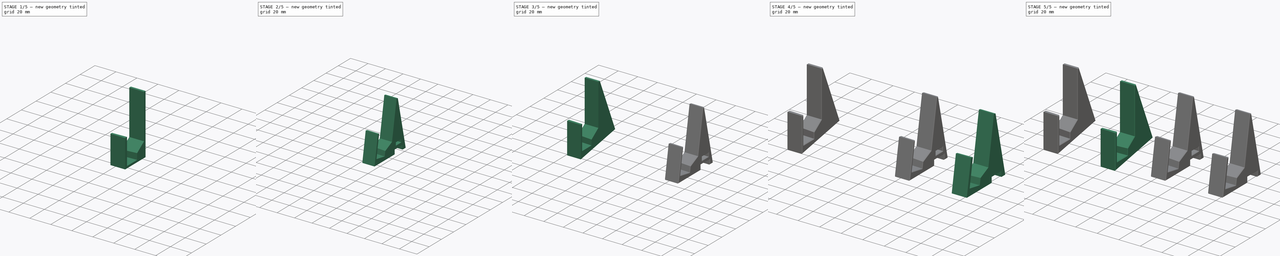
[diagram: build sequence overview — one tinted view per stage of 5, left to right]
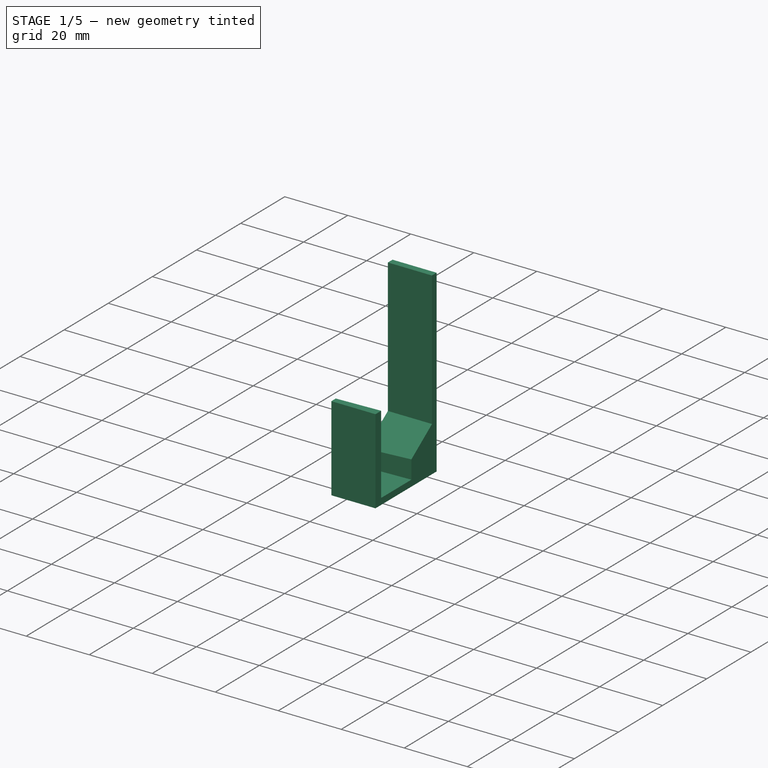
[diagram: stage 1 of 5 — iso view after this stage's code; geometry added in this stage tinted green]
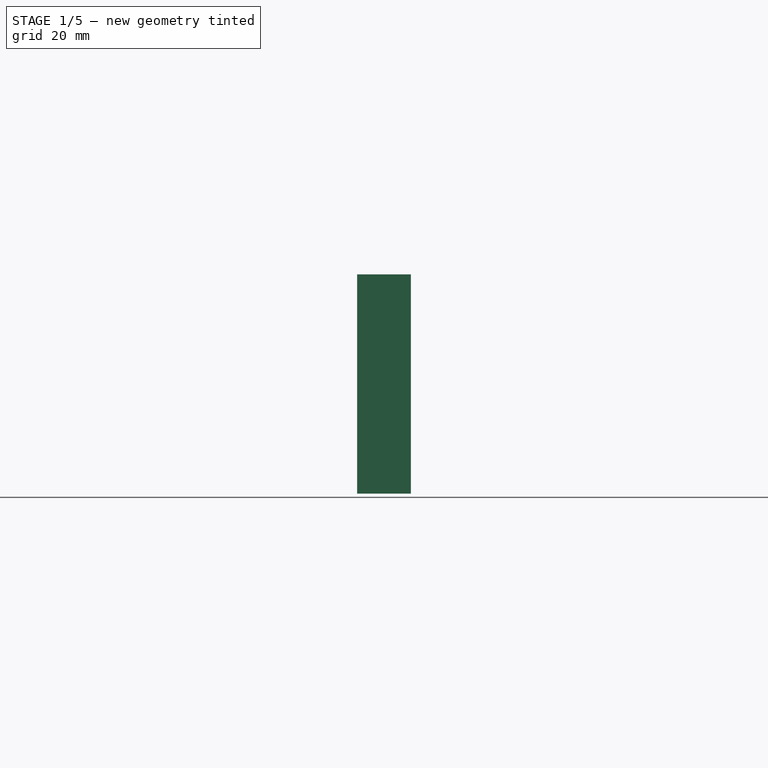
[diagram: stage 1 of 5 — front view after this stage's code; geometry added in this stage tinted green]
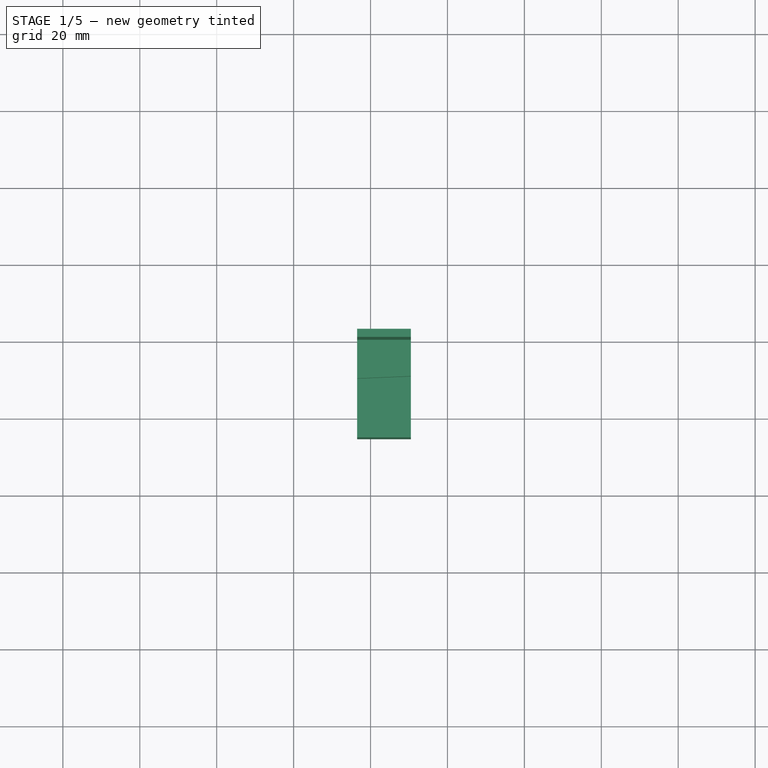
[diagram: stage 1 of 5 — top view after this stage's code; geometry added in this stage tinted green]
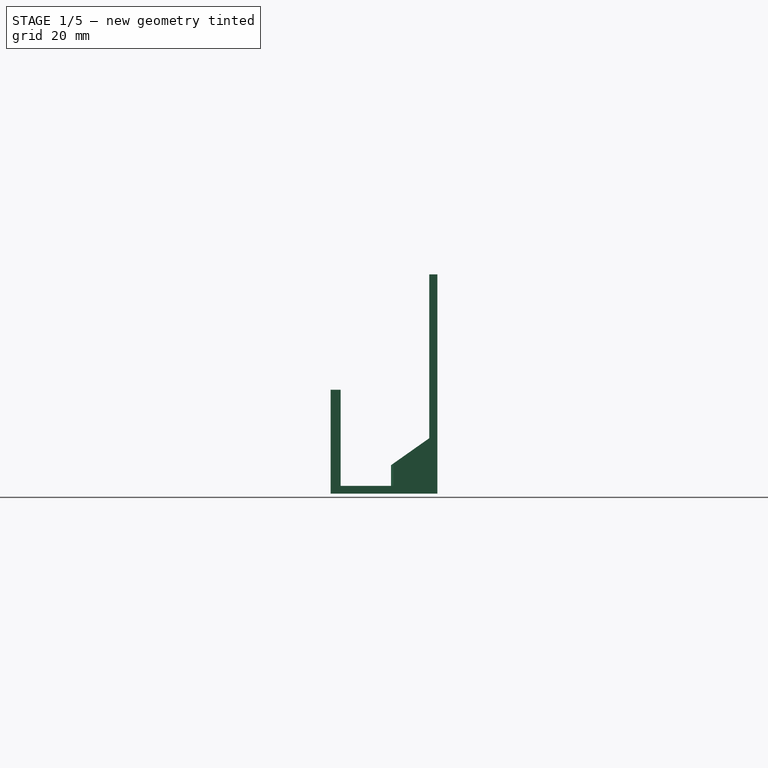
[diagram: stage 1 of 5 — right view after this stage's code; geometry added in this stage tinted green]
FCSTD DOCUMENT  (FreeCAD 1.1R14555 (Git shallow))
Label: GBP Kit
License: Creative Commons Attribution-NonCommercial-ShareAlike
LicenseURL: http://creativecommons.org/licenses/by-nc-sa/4.0/
objects: Sketcher::SketchObject×20, PartDesign::Pocket×18, PartDesign::Pad×11, App::Point×6, PartDesign::Body×5, PartDesign::Chamfer×5, Part::Part2DObjectPython×4, PartDesign::FeatureBase×4, Part::Mirroring×1, PartDesign::ShapeBinder×1, App::Part×1
note: 161 computed .brp shape members not serialized (recipe doc carries the construction recipe); baked Part::Feature solids carry a one-line shape summary decoded from their .brp

FEATURE [Sketcher::SketchObject] Sketch
  ArcFitTolerance = 0
  AttachmentSupport = -> [XY_Plane001]
  ExternalTypes = [0]
  FullyConstrained = true
  MakeInternals = false
  MapMode = 5
  sketch-geometry (15):
    g0: LineSegment [constr] StartX=1.492e-13 StartY=0 StartZ=0 EndX=69 EndY=0 EndZ=0
    g1: LineSegment [constr] StartX=69 StartY=0 StartZ=0 EndX=69 EndY=-22.5 EndZ=0
    g2: LineSegment [constr] StartX=69 StartY=-22.5 StartZ=0 EndX=1.421e-13 EndY=-22.5 EndZ=0
    g3: LineSegment [constr] StartX=1.492e-13 StartY=-22.5 StartZ=0 EndX=1.492e-13 EndY=0 EndZ=0
    g4: LineSegment [constr] StartX=34.5 StartY=0 StartZ=0 EndX=34.5 EndY=-23.5 EndZ=0
    g5: ArcOfCircle [constr] CenterX=34.5 CenterY=572.125 CenterZ=0 NormalX=0 NormalY=0 NormalZ=1 AngleXU=0 Radius=595.625 StartAngle=4.65443 EndAngle=4.77034
    g6: LineSegment StartX=16.5 StartY=2.5 StartZ=0 EndX=16.5 EndY=-23.228 EndZ=0
    g7: LineSegment [constr] StartX=16.5 StartY=-23.228 StartZ=0 EndX=2.5 EndY=-23.228 EndZ=0
    g8: LineSegment [constr] StartX=2.5 StartY=-23.228 StartZ=0 EndX=2.5 EndY=0 EndZ=0
    g9: LineSegment [constr] StartX=1.492e-13 StartY=0 StartZ=0 EndX=2.5 EndY=0 EndZ=0
    g10: LineSegment [constr] StartX=69 StartY=0 StartZ=0 EndX=66.5 EndY=0 EndZ=0
    g11: LineSegment StartX=2.5 StartY=0 StartZ=0 EndX=2.5 EndY=-22.6398 EndZ=0
    g12: ArcOfCircle CenterX=34.5 CenterY=572.125 CenterZ=0 NormalX=0 NormalY=0 NormalZ=1 AngleXU=0 Radius=595.625 StartAngle=4.65864 EndAngle=4.68216
    g13: LineSegment StartX=2.5 StartY=0 StartZ=0 EndX=2.5 EndY=2.5 EndZ=0
    g14: LineSegment StartX=2.5 StartY=2.5 StartZ=0 EndX=16.5 EndY=2.5 EndZ=0
  constraints (42):
    c: Coincident(g0,g1)
    c: Coincident(g1,g2)
    c: Coincident(g2,g3)
    c: Coincident(g3,g0)
    c: Horizontal(g0)
    c: Horizontal(g2)
    c: Vertical(g1)
    c: Vertical(g3)
    c: Coincident(g0,g-1)
    c: DistanceX(g0,g0) = 69
    c: DistanceY(g1,g1) = 22.5
    c: Vertical(g4)
    c: Distance(g4) = 23.5
    c: Symmetric(g0,g0,g4)
    c: Coincident(g5,g2)
    c: Coincident(g5,g1)
    c: PointOnObject(g4,g5)
    c: Coincident(g6,g7)
    c: Coincident(g7,g8)
    c: Horizontal(g7)
    c: Vertical(g6)
    c: Vertical(g8)
    c: PointOnObject(g8,g0)
    c: Coincident(g9,g0)
    c: Coincident(g10,g0)
    c: Equal(g10,g9)
    c: Distance(g9) = 2.5
    c: PointOnObject(g6,g5)
    c: Vertical(g11)
    c: Coincident(g12,g11)
    c: Coincident(g12,g6)
    c: Coincident(g11,g8)
    c: Coincident(g11,g9)
    c: Coincident(g13,g11)
    c: Vertical(g13)
    c: Coincident(g14,g13)
    c: Horizontal(g14)
    c: Coincident(g6,g14)
    c: DistanceY(g13,g13) = 2.5
    c: DistanceX(g14,g14) = 14
    c: Coincident(g5,g12)
    c: PointOnObject(g10,g0)
FEATURE [PartDesign::Pad] Pad
  Direction = (0,0,1)
  Length = 2
  Length2 = 10
  Profile = -> Sketch
  ReferenceAxis = -> Sketch [N_Axis]
  Suppressed = false
  Type = 0
FEATURE [Sketcher::SketchObject] Sketch001
  ArcFitTolerance = 0
  AttachmentSupport = -> [Pad]
  ExternalGeometry = -> [Pad]
  ExternalTypes = [0,0]
  FullyConstrained = true
  MakeInternals = false
  MapMode = 5
  Placement = pos=(0,0,0) rot=(1,0,0;3.14159rad)
  sketch-geometry (8):
    g0: LineSegment StartX=2.5 StartY=-2.5 StartZ=0 EndX=16.5 EndY=-2.5 EndZ=0
    g1: LineSegment StartX=16.5 StartY=-2.5 StartZ=0 EndX=16.5 EndY=-0.4 EndZ=0
    g2: LineSegment StartX=16.5 StartY=-0.4 StartZ=0 EndX=2.5 EndY=-0.4 EndZ=0
    g3: LineSegment StartX=2.5 StartY=-0.4 StartZ=0 EndX=2.5 EndY=-2.5 EndZ=0
    g4: LineSegment StartX=2.5 StartY=22.6398 StartZ=0 EndX=2.5 EndY=25.228 EndZ=0
    g5: LineSegment StartX=2.5 StartY=25.228 StartZ=0 EndX=16.5 EndY=25.228 EndZ=0
    g6: LineSegment StartX=16.5 StartY=25.228 StartZ=0 EndX=16.5 EndY=23.228 EndZ=0
    g7: LineSegment StartX=2.5 StartY=22.6398 StartZ=0 EndX=16.5 EndY=23.228 EndZ=0
  constraints (20):
    c: Coincident(g0,g1)
    c: Coincident(g1,g2)
    c: Coincident(g2,g3)
    c: Coincident(g3,g0)
    c: Horizontal(g2)
    c: Vertical(g1)
    c: Vertical(g3)
    c: DistanceY(g1,g1) = 2.1
    c: Coincident(g5,g4)
    c: Horizontal(g5)
    c: Coincident(g6,g5)
    c: Perpendicular(g5,g4)
    c: Perpendicular(g6,g5)
    c: Distance(g6) = 2
    c: Coincident(g0,g-4)
    c: Coincident(g0,g-4)
    c: Coincident(g4,g-3)
    c: Coincident(g6,g-3)
    c: Coincident(g7,g4)
    c: Coincident(g7,g6)
FEATURE [PartDesign::Pad] Pad001
  BaseFeature = -> Pad
  Direction = (0,0,-1)
  Length = 27
  Length2 = 10
  Profile = -> Sketch001
  ReferenceAxis = -> Sketch001 [N_Axis]
  Refine = true
  Reversed = true
  Suppressed = false
  Type = 0
FEATURE [Sketcher::SketchObject] Sketch002
  ArcFitTolerance = 0
  AttachmentSupport = -> [Pad001]
  ExternalGeometry = -> [Pad001]
  ExternalTypes = [0,0]
  FullyConstrained = true
  MakeInternals = false
  MapMode = 5
  Placement = pos=(0,0,2) rot=(0,0,1;0rad)
  sketch-geometry (6):
    g0: LineSegment StartX=2.5 StartY=-8.93978 StartZ=0 EndX=2.5 EndY=0.4 EndZ=0
    g1: LineSegment StartX=2.5 StartY=0.4 StartZ=0 EndX=16.5 EndY=0.4 EndZ=0
    g2: LineSegment StartX=16.5 StartY=0.4 StartZ=0 EndX=16.5 EndY=-9.52795 EndZ=0
    g3: LineSegment [constr] StartX=2.5 StartY=-22.6398 StartZ=0 EndX=2.5 EndY=-8.93978 EndZ=0
    g4: LineSegment [constr] StartX=16.5 StartY=-23.228 StartZ=0 EndX=16.5 EndY=-9.52795 EndZ=0
    g5: LineSegment StartX=2.5 StartY=-8.93978 StartZ=0 EndX=16.5 EndY=-9.52795 EndZ=0
  constraints (14):
    c: Coincident(g1,g0)
    c: Coincident(g2,g1)
    c: Coincident(g3,g-3)
    c: Coincident(g3,g0)
    c: Vertical(g3)
    c: Coincident(g4,g-3)
    c: Coincident(g4,g2)
    c: Vertical(g4)
    c: Equal(g3,g4)
    c: Distance(g3) = 13.7
    c: Coincident(g-4,g0)
    c: Coincident(g-4,g1)
    c: Coincident(g5,g0)
    c: Coincident(g5,g2)
FEATURE [PartDesign::Pad] Pad002
  BaseFeature = -> Pad001
  Direction = (0,0,1)
  Length = 5.4
  Length2 = 10
  Profile = -> Sketch002
  ReferenceAxis = -> Sketch002 [N_Axis]
  Suppressed = false
  Type = 0
FEATURE [Sketcher::SketchObject] Sketch003
  ArcFitTolerance = 0
  AttachmentSupport = -> [Pad002]
  ExternalGeometry = -> [Pad002]
  ExternalTypes = [0]
  FullyConstrained = true
  MakeInternals = false
  MapMode = 5
  Placement = pos=(16.5,0,0) rot=(0.57735,0.57735,0.57735;2.0944rad)
  sketch-geometry (3):
    g0: LineSegment StartX=-9.52795 StartY=7.4 StartZ=0 EndX=0.4 EndY=14.4 EndZ=0
    g1: LineSegment StartX=0.4 StartY=14.4 StartZ=0 EndX=0.4 EndY=7.4 EndZ=0
    g2: LineSegment StartX=0.4 StartY=7.4 StartZ=0 EndX=-9.52795 EndY=7.4 EndZ=0
  constraints (7):
    c: Coincident(g0,g-3)
    c: PointOnObject(g0,g-4)
    c: Coincident(g1,g0)
    c: Coincident(g1,g-4)
    c: Coincident(g2,g1)
    c: Coincident(g2,g0)
    c: DistanceY(g1,g1) = 7
FEATURE [PartDesign::Pad] Pad003
  BaseFeature = -> Pad002
  Direction = (1,0,0)
  Length = 14
  Length2 = 10
  Profile = -> Sketch003
  ReferenceAxis = -> Sketch003 [N_Axis]
  Reversed = true
  Suppressed = false
  Type = 0
FEATURE [PartDesign::Pocket] Pocket
  BaseFeature = -> Pad003
  Direction = (0,0,1)
  Length = 5
  Length2 = 5
  Profile = -> Pad003 [Face15]
  Refine = true
  Suppressed = false
  Type = 0
FEATURE [PartDesign::Pad] Pad004
  BaseFeature = -> Pocket
  Direction = (0,0,1)
  Length = 30
  Length2 = 10
  Profile = -> Pocket [Face2]
  Refine = true
  Suppressed = false
  Type = 0
FEATURE [PartDesign::Body] Body  label="Prolfile Left"
  AllowCompound = false
  Group = -> [Sketch,Pad,Sketch001,Pad001,Sketch002,Pad002,Sketch003,Pad003,Pocket,Pad004]
  Origin = -> Origin001
  Placement = pos=(-100,0,0) rot=(0,0,1;0rad)
  Tip = -> Pad004
FEATURE [Part::Part2DObjectPython] ShapeString  # Draft 2D object (typed FeaturePython)
  FontFile = <path> Bit Git Repro/16BitVirtualStudiosDesigns/Font/OpenSans-Regular.ttf
  Fuse = false
  Justification = 6
  JustificationReference = 0
  KeepLeftMargin = true
  MakeFace = true
  ObliqueAngle = 0
  Placement = pos=(68.08,-20.75,12.67) rot=(0,0.707107,0.707107;3.14159rad)
  ScaleToSize = false
  Size = 4
  String = GBP
  Tracking = 0
FEATURE [Part::Mirroring] Part__Mirroring  label="Profile Basic"
  Base = (3.8147e-06,-11.364,28.5)
  Normal = (1,0,-1.19209e-07)
  Placement = pos=(-150,0,0) rot=(0,0,1;0rad)
  Source = -> Body
FEATURE [PartDesign::FeatureBase] Clone
  BaseFeature = -> Part__Mirroring
  Placement = pos=(-27,0,0) rot=(0,0,1;0rad)
  Suppressed = false
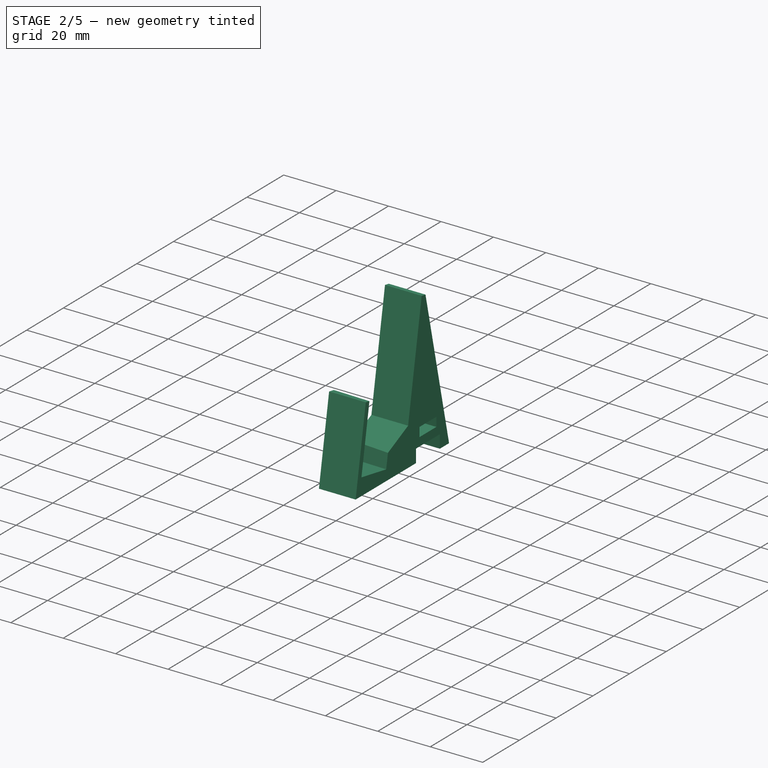
[diagram: stage 2 of 5 — iso view after this stage's code; geometry added in this stage tinted green]
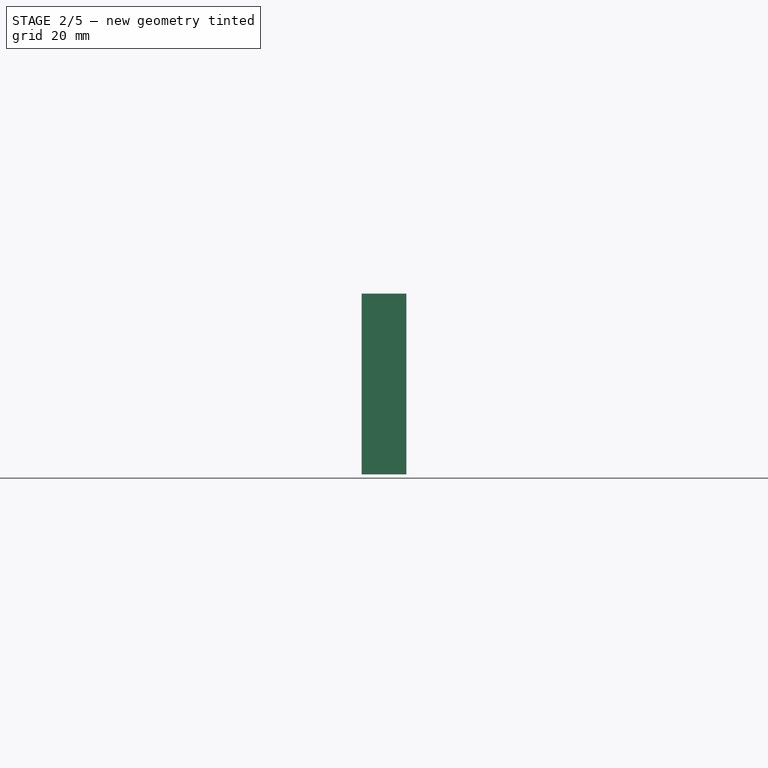
[diagram: stage 2 of 5 — front view after this stage's code; geometry added in this stage tinted green]
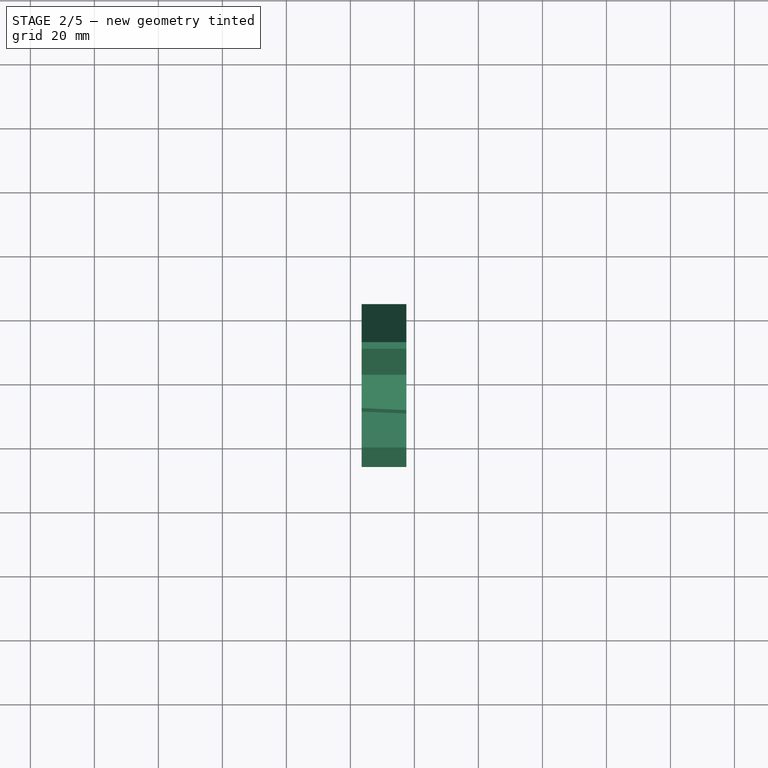
[diagram: stage 2 of 5 — top view after this stage's code; geometry added in this stage tinted green]
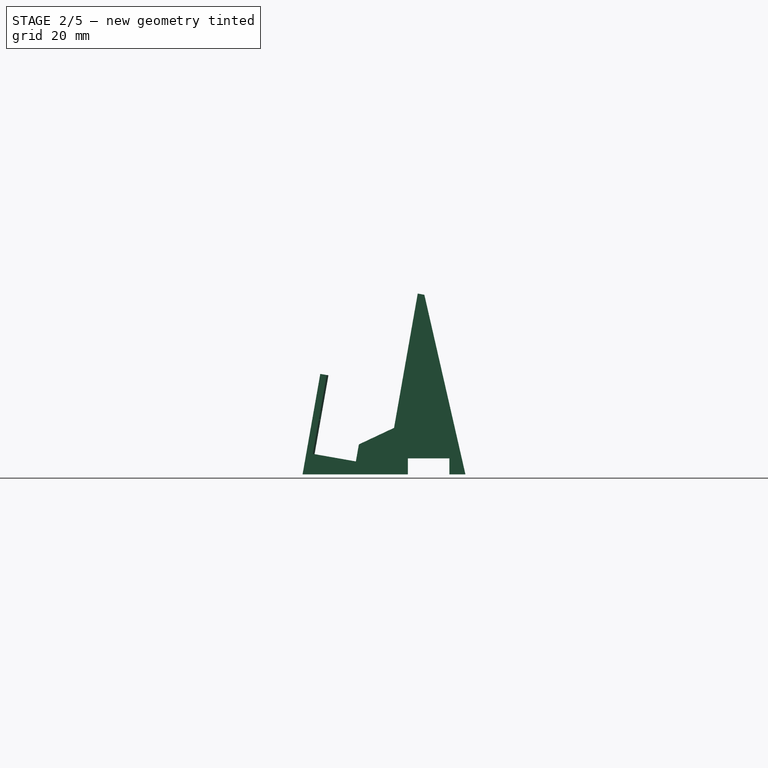
[diagram: stage 2 of 5 — right view after this stage's code; geometry added in this stage tinted green]
FEATURE [PartDesign::FeatureBase] Clone001
  BaseFeature = -> Body
  Placement = pos=(1,0,0) rot=(0,0,1;0rad)
  Suppressed = false
FEATURE [Part::Part2DObjectPython] ShapeString001  # Draft 2D object (typed FeaturePython)
  FontFile = <path> Bit Git Repro/16BitVirtualStudiosDesigns/Font/OpenSans-Regular.ttf
  Fuse = false
  Justification = 6
  JustificationReference = 0
  KeepLeftMargin = true
  MakeFace = true
  ObliqueAngle = 0
  Placement = pos=(15.08,-20.75,12.67) rot=(0,0.707107,0.707107;3.14159rad)
  ScaleToSize = false
  Size = 4
  String = GBP
  Tracking = 0
FEATURE [PartDesign::Pocket] Pocket001
  BaseFeature = -> Clone001
  Direction = (-1e-16,-1,2e-16)
  Length = 0
  Length2 = 5
  Offset = -1.8
  Placement = pos=(1,0,0) rot=(0,0,1;0rad)
  Profile = -> ShapeString001
  ReferenceAxis = -> ShapeString001 [N_Axis]
  Suppressed = false
  Type = 3
  UpToFace = -> Clone001 [Face1]
FEATURE [PartDesign::Pocket] Pocket002
  BaseFeature = -> Clone
  Direction = (-1e-16,-1,2e-16)
  Length = 0
  Length2 = 5
  Offset = -1.8
  Placement = pos=(-27,0,0) rot=(0,0,1;0rad)
  Profile = -> ShapeString
  ReferenceAxis = -> ShapeString [N_Axis]
  Suppressed = false
  Type = 3
  UpToFace = -> Clone [Face1]
FEATURE [Sketcher::SketchObject] Sketch004
  ArcFitTolerance = 0
  AttachmentSupport = -> [Pocket002]
  ExternalGeometry = -> [Pocket002]
  ExternalTypes = [0]
  FullyConstrained = true
  MakeInternals = false
  MapMode = 5
  Placement = pos=(70.5,0,-2.32458e-05) rot=(0.57735,0.57735,0.57735;2.0944rad)
  sketch-geometry (20):
    g0: LineSegment StartX=2.5 StartY=2.388e-13 StartZ=0 EndX=-25.228 EndY=-4.88919 EndZ=0
    g1: LineSegment StartX=-25.228 StartY=2.399e-13 StartZ=0 EndX=-25.228 EndY=-4.88919 EndZ=0
    g2: LineSegment StartX=2.5 StartY=2.388e-13 StartZ=0 EndX=7.16596 EndY=0.822735 EndZ=0
    g3: LineSegment StartX=7.16596 StartY=0.822735 StartZ=0 EndX=6.29772 EndY=5.74677 EndZ=0
    g4: LineSegment StartX=6.29772 StartY=5.74677 StartZ=0 EndX=19.1002 EndY=8.0042 EndZ=0
    g5: LineSegment StartX=19.1002 StartY=8.0042 StartZ=0 EndX=19.9685 EndY=3.08016 EndZ=0
    g6: LineSegment StartX=19.9685 StartY=3.08016 StartZ=0 EndX=24.8925 EndY=3.9484 EndZ=0
    g7: LineSegment [constr] StartX=7.16596 StartY=0.822735 StartZ=0 EndX=19.9685 EndY=3.08016 EndZ=0
    g8: LineSegment [constr] StartX=12.699 StartY=6.87549 StartZ=0 EndX=12.1346 EndY=10.0761 EndZ=0
    g9: LineSegment StartX=6.99673 StartY=12.7242 StartZ=0 EndX=16.057 EndY=14.3217 EndZ=0
    g10: LineSegment StartX=16.057 StartY=14.3217 StartZ=0 EndX=16.6647 EndY=10.8749 EndZ=0
    g11: LineSegment StartX=16.6647 StartY=10.8749 StartZ=0 EndX=7.6045 EndY=9.27733 EndZ=0
    g12: LineSegment StartX=7.6045 StartY=9.27733 StartZ=0 EndX=6.99673 EndY=12.7242 EndZ=0
    g13: LineSegment [constr] StartX=6.99673 StartY=12.7242 StartZ=0 EndX=2.5 EndY=11.9313 EndZ=0
    g14: LineSegment [constr] StartX=2.5 StartY=5.07713 StartZ=0 EndX=6.29772 EndY=5.74677 EndZ=0
    g15: LineSegment StartX=2.5 StartY=57 StartZ=0 EndX=24.8925 EndY=3.9484 EndZ=0
    g16: LineSegment [constr] StartX=19.1002 StartY=8.0042 StartZ=0 EndX=22.8979 EndY=8.67384 EndZ=0
    g17: LineSegment [constr] StartX=16.057 StartY=14.3217 StartZ=0 EndX=20.2053 EndY=15.0532 EndZ=0
    g18: LineSegment StartX=2.5 StartY=57 StartZ=0 EndX=2.5 EndY=2.416e-13 EndZ=0
    g19: LineSegment StartX=2.5 StartY=2.388e-13 StartZ=0 EndX=-25.228 EndY=2.399e-13 EndZ=0
  constraints (54):
    c: Coincident(g0,g-4)
    c: Coincident(g1,g-3)
    c: Coincident(g1,g0)
    c: Perpendicular(g-3,g1)
    c: Coincident(g2,g0)
    c: Coincident(g3,g2)
    c: Coincident(g4,g3)
    c: Coincident(g5,g4)
    c: Coincident(g6,g5)
    c: Parallel(g2,g0)
    c: Parallel(g2,g6)
    c: Perpendicular(g3,g2)
    c: Perpendicular(g6,g5)
    c: Perpendicular(g4,g5)
    c: Angle(g-3,g0) = 0.174533
    c: Coincident(g7,g2)
    c: Coincident(g7,g5)
    c: Parallel(g7,g2)
    c: Distance(g7) = 13
    c: Distance(g5) = 5
    c: Coincident(g11,g10)
    c: Coincident(g12,g11)
    c: Coincident(g12,g9)
    c: Symmetric(g11,g10,g8)
    c: Symmetric(g3,g4,g8)
    c: Perpendicular(g8,g4)
    c: Perpendicular(g11,g8)
    c: Perpendicular(g10,g11)
    c: Perpendicular(g9,g10)
    c: Perpendicular(g12,g11)
    c: Coincident(g13,g9)
    c: PointOnObject(g13,g-4)
    c: PointOnObject(g14,g-4)
    c: Coincident(g14,g3)
    c: Coincident(g15,g-4)
    c: Coincident(g15,g6)
    c: Coincident(g9,g10)
    c: Coincident(g16,g4)
    c: PointOnObject(g16,g15)
    c: Parallel(g14,g4)
    c: Parallel(g13,g9)
    c: Parallel(g16,g4)
    c: Distance(g8) = 3.25
    c: Distance(g10) = 3.5
    c: Distance(g9) = 9.2
    c: Equal(g14,g16)
    c: Coincident(g17,g9)
    c: PointOnObject(g17,g15)
    c: Parallel(g9,g17)
    c: Distance(g6) = 5
    c: Coincident(g18,g15)
    c: Coincident(g18,g0)
    c: Coincident(g19,g0)
    c: Coincident(g19,g1)
FEATURE [PartDesign::Pad] Pad005
  BaseFeature = -> Pocket002
  Direction = (1,0,-2.38419e-07)
  Length = 14
  Length2 = 10
  Placement = pos=(-27,0,0) rot=(0,0,1;0rad)
  Profile = -> Sketch004
  ReferenceAxis = -> Sketch004 [N_Axis]
  Refine = true
  Reversed = true
  Suppressed = false
  Type = 0
FEATURE [Sketcher::SketchObject] Sketch015  label="GB Icon"
  ArcFitTolerance = 0
  ExternalTypes = [0]
  FullyConstrained = false
  MakeInternals = false
  Placement = pos=(6.55,12.23,-0.43) rot=(0,1,0;3.14159rad)
  sketch-geometry (16):
    g0: BSplineCurve PolesCount=2 KnotsCount=2 Degree=1 IsPeriodic=0
    g1: BSplineCurve PolesCount=4 KnotsCount=2 Degree=3 IsPeriodic=0
    g2: BSplineCurve PolesCount=4 KnotsCount=2 Degree=3 IsPeriodic=0
    g3: BSplineCurve PolesCount=4 KnotsCount=2 Degree=3 IsPeriodic=0
    g4: BSplineCurve PolesCount=2 KnotsCount=2 Degree=1 IsPeriodic=0
    g5: BSplineCurve PolesCount=4 KnotsCount=2 Degree=3 IsPeriodic=0
    g6: BSplineCurve PolesCount=2 KnotsCount=2 Degree=1 IsPeriodic=0
    g7: BSplineCurve PolesCount=4 KnotsCount=2 Degree=3 IsPeriodic=0
    g8: BSplineCurve PolesCount=2 KnotsCount=2 Degree=1 IsPeriodic=0
    g9: BSplineCurve PolesCount=4 KnotsCount=2 Degree=3 IsPeriodic=0
    g10: BSplineCurve PolesCount=4 KnotsCount=2 Degree=3 IsPeriodic=0
    g11: BSplineCurve PolesCount=4 KnotsCount=2 Degree=3 IsPeriodic=0
    g12: BSplineCurve PolesCount=2 KnotsCount=2 Degree=1 IsPeriodic=0
    g13: BSplineCurve PolesCount=4 KnotsCount=2 Degree=3 IsPeriodic=0
    g14: BSplineCurve PolesCount=2 KnotsCount=2 Degree=1 IsPeriodic=0
    g15: BSplineCurve PolesCount=4 KnotsCount=2 Degree=3 IsPeriodic=0
  constraints (16):
    c: Coincident(g0,g1)
    c: Coincident(g1,g2)
    c: Coincident(g2,g3)
    c: Coincident(g3,g4)
    c: Coincident(g4,g5)
    c: Coincident(g5,g6)
    c: Coincident(g6,g7)
    c: Coincident(g7,g0)
    c: Coincident(g8,g9)
    c: Coincident(g9,g10)
    c: Coincident(g10,g11)
    c: Coincident(g11,g12)
    c: Coincident(g12,g13)
    c: Coincident(g13,g14)
    c: Coincident(g14,g15)
    c: Coincident(g15,g8)
FEATURE [PartDesign::ShapeBinder] ShapeBinder
  Placement = pos=(-27,0,0) rot=(0,0,1;0rad)
  Support = -> [Pad005]
  Suppressed = false
  TraceSupport = false
FEATURE [Sketcher::SketchObject] Sketch016
  ArcFitTolerance = 0
  AttachmentSupport = -> [Pocket001]
  ExternalGeometry = -> [ShapeBinder,Pocket001]
  ExternalTypes = [0]
  FullyConstrained = true
  MakeInternals = false
  MapMode = 5
  Placement = pos=(3.5,0,0) rot=(0.57735,-0.57735,-0.57735;2.0944rad)
  sketch-geometry (14):
    g0: LineSegment StartX=-7.16596 StartY=0.822715 StartZ=0 EndX=25.228 EndY=-4.88921 EndZ=0
    g1: LineSegment StartX=25.228 StartY=-4.88921 StartZ=0 EndX=25.228 EndY=1 EndZ=0
    g2: LineSegment StartX=25.228 StartY=1 StartZ=0 EndX=-1.75 EndY=1 EndZ=0
    g3: LineSegment StartX=-7.16596 StartY=0.822715 StartZ=0 EndX=-6.29772 EndY=5.74675 EndZ=0
    g4: LineSegment StartX=-6.29772 StartY=5.74675 StartZ=0 EndX=-19.1002 EndY=8.00418 EndZ=0
    g5: LineSegment StartX=-19.1002 StartY=8.00418 StartZ=0 EndX=-19.9685 EndY=3.08014 EndZ=0
    g6: LineSegment StartX=-19.9685 StartY=3.08014 StartZ=0 EndX=-24.8925 EndY=3.94838 EndZ=0
    g7: LineSegment StartX=-24.8925 StartY=3.94838 StartZ=0 EndX=-2.5 EndY=57 EndZ=0
    g8: LineSegment StartX=-16.057 StartY=14.3217 StartZ=0 EndX=-6.99673 EndY=12.7241 EndZ=0
    g9: LineSegment StartX=-6.99673 StartY=12.7241 StartZ=0 EndX=-7.6045 EndY=9.27731 EndZ=0
    g10: LineSegment StartX=-7.6045 StartY=9.27731 StartZ=0 EndX=-16.6647 EndY=10.8749 EndZ=0
    g11: LineSegment StartX=-16.6647 StartY=10.8749 StartZ=0 EndX=-16.057 EndY=14.3217 EndZ=0
    g12: LineSegment StartX=-2.5 StartY=57 StartZ=0 EndX=-1.75 EndY=57 EndZ=0
    g13: LineSegment StartX=-1.75 StartY=57 StartZ=0 EndX=-1.75 EndY=1 EndZ=0
  constraints (31):
    c: Coincident(g1,g0)
    c: Coincident(g3,g0)
    c: Coincident(g3,g-5)
    c: Coincident(g4,g3)
    c: Coincident(g4,g-5)
    c: Coincident(g5,g4)
    c: Coincident(g5,g-4)
    c: Coincident(g6,g5)
    c: Coincident(g7,g6)
    c: Coincident(g8,g-6)
    c: Coincident(g8,g-7)
    c: Coincident(g9,g8)
    c: Coincident(g9,g-7)
    c: Coincident(g10,g9)
    c: Coincident(g10,g-6)
    c: Coincident(g11,g10)
    c: Coincident(g11,g8)
    c: Coincident(g-3,g0)
    c: Coincident(g-3,g0)
    c: Coincident(g1,g2)
    c: Parallel(g-8,g1)
    c: DistanceY(g-8,g1) = 1
    c: Coincident(g-4,g6)
    c: Coincident(g7,g-9)
    c: Coincident(g12,g7)
    c: PointOnObject(g12,g-9)
    c: Coincident(g13,g12)
    c: Coincident(g13,g2)
    c: Vertical(g13)
    c: Perpendicular(g2,g13)
    c: Distance(g12) = 0.75
FEATURE [PartDesign::Pad] Pad012
  BaseFeature = -> Pocket001
  Direction = (-1,0,0)
  Length = 14
  Length2 = 10
  Placement = pos=(1,0,0) rot=(0,0,1;0rad)
  Profile = -> Sketch016
  ReferenceAxis = -> Sketch016 [N_Axis]
  Refine = true
  Reversed = true
  Suppressed = false
  Type = 0
FEATURE [PartDesign::Pocket] Pocket009
  BaseFeature = -> Pad012
  Direction = (0,-0.173648,0.984808)
  Length = 0
  Length2 = 5
  Offset = 0.5
  Placement = pos=(1,0,0) rot=(0,0,1;0rad)
  Profile = -> ShapeString003
  ReferenceAxis = -> ShapeString003 [N_Axis]
  Suppressed = false
  Type = 3
  UpToFace = -> Pad012 [Face100]
FEATURE [PartDesign::FeatureBase] Clone003
  BaseFeature = -> Pocket009
  Placement = pos=(101,0,0) rot=(-1,0,0;0.174533rad)
  Suppressed = false
FEATURE [Sketcher::SketchObject] Sketch009
  ArcFitTolerance = 0
  AttachmentSupport = -> [Clone003]
  ExternalGeometry = -> [Clone003]
  ExternalTypes = [0]
  FullyConstrained = true
  MakeInternals = false
  MapMode = 5
  Placement = pos=(103.5,0,0) rot=(0.540716,-0.6444,-0.540716;1.99673rad)
  sketch-geometry (4):
    g0: LineSegment StartX=-16.057 StartY=14.3217 StartZ=0 EndX=-6.99673 EndY=12.7241 EndZ=0
    g1: LineSegment StartX=-7.6045 StartY=9.27731 StartZ=0 EndX=-16.6647 EndY=10.8749 EndZ=0
    g2: LineSegment StartX=-16.6647 StartY=10.8749 StartZ=0 EndX=-16.057 EndY=14.3217 EndZ=0
    g3: LineSegment StartX=-6.99673 StartY=12.7241 StartZ=0 EndX=-7.6045 EndY=9.27731 EndZ=0
  constraints (8):
    c: Coincident(g0,g-3)
    c: Coincident(g0,g-4)
    c: Coincident(g1,g-4)
    c: Coincident(g1,g-3)
    c: Coincident(g2,g1)
    c: Coincident(g2,g0)
    c: Coincident(g3,g0)
    c: Coincident(g3,g1)
FEATURE [PartDesign::Pad] Pad010
  BaseFeature = -> Clone003
  Direction = (-1,0,2e-16)
  Length = 2
  Length2 = 10
  Placement = pos=(101,0,0) rot=(-1,0,0;0.174533rad)
  Profile = -> Sketch009
  ReferenceAxis = -> Sketch009 [N_Axis]
  Refine = true
  Reversed = true
  Suppressed = false
  Type = 0
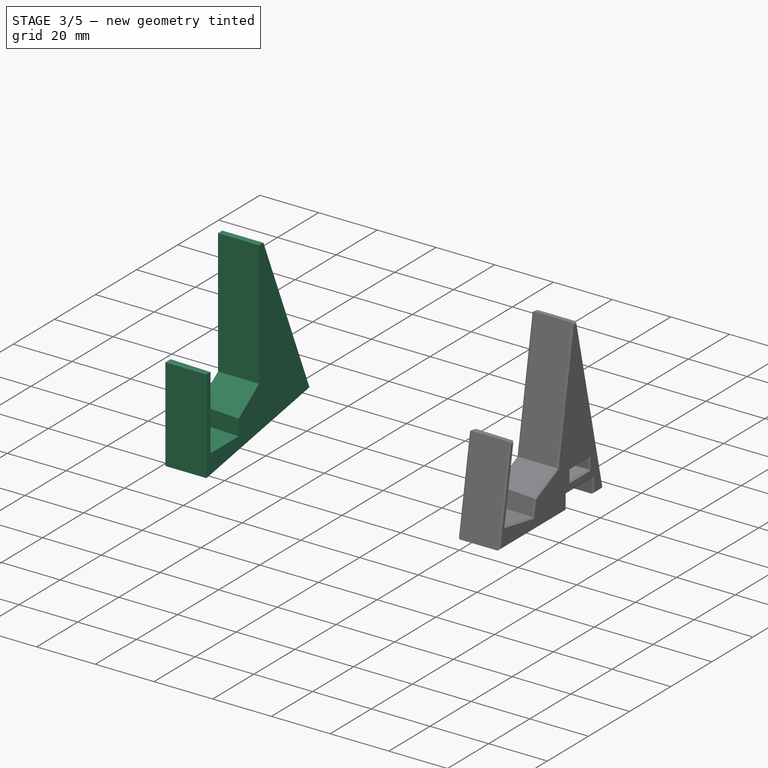
[diagram: stage 3 of 5 — iso view after this stage's code; geometry added in this stage tinted green]
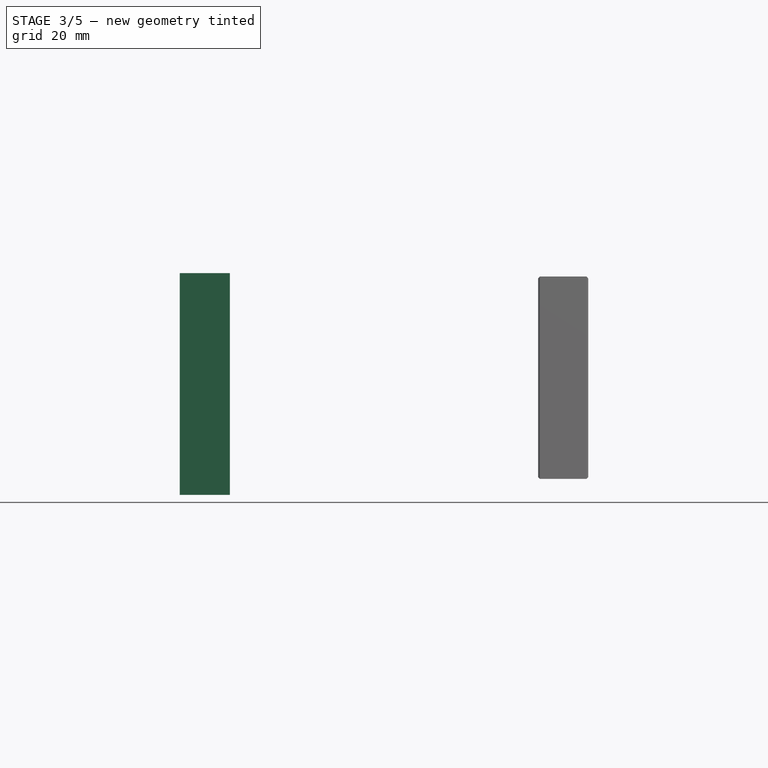
[diagram: stage 3 of 5 — front view after this stage's code; geometry added in this stage tinted green]
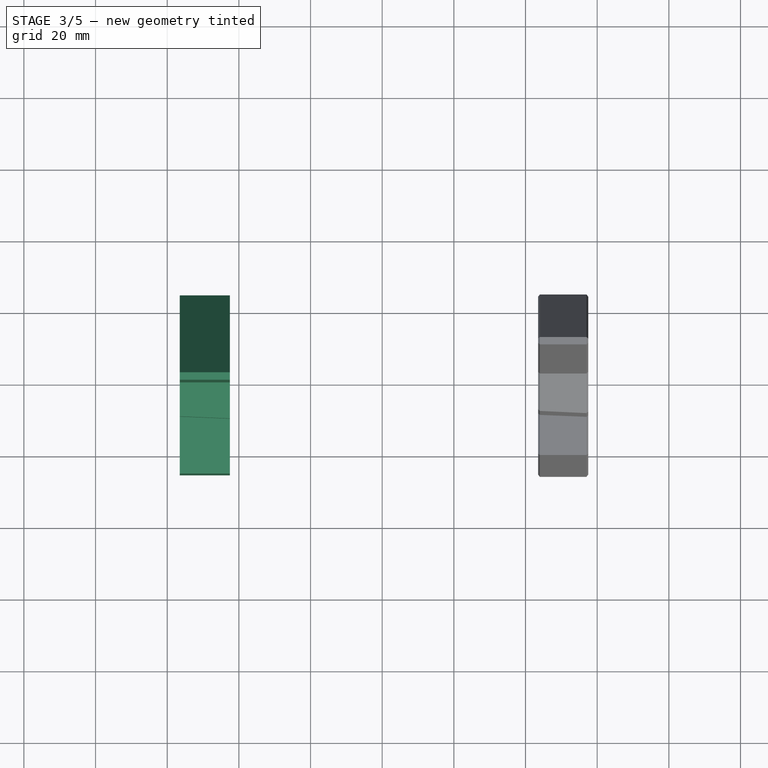
[diagram: stage 3 of 5 — top view after this stage's code; geometry added in this stage tinted green]
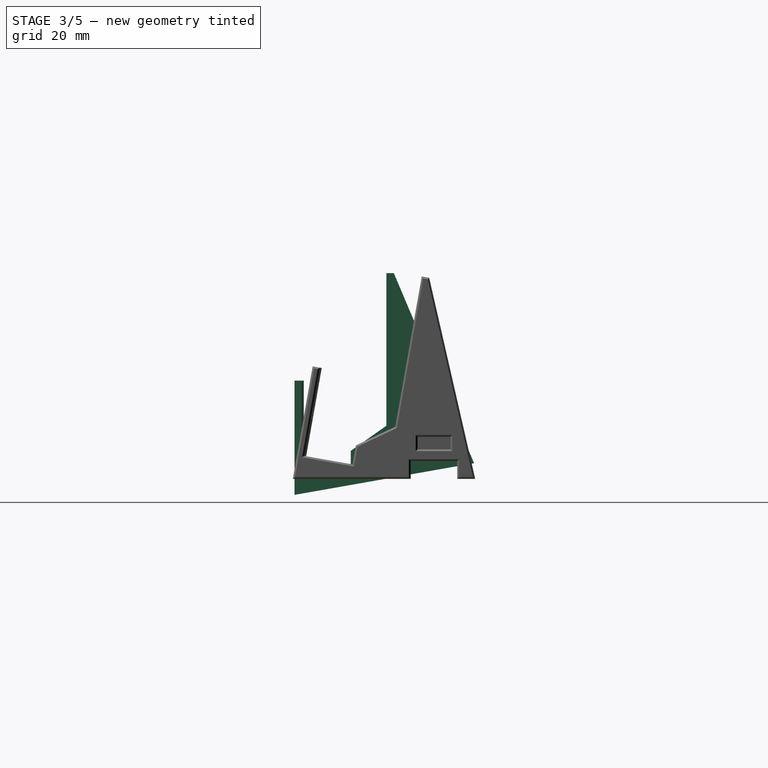
[diagram: stage 3 of 5 — right view after this stage's code; geometry added in this stage tinted green]
FEATURE [Sketcher::SketchObject] Sketch010
  ArcFitTolerance = 0
  AttachmentSupport = -> [Pad010]
  ExternalGeometry = -> [Pad010]
  ExternalTypes = [0]
  FullyConstrained = true
  MakeInternals = false
  MapMode = 5
  Placement = pos=(101,2.26e-14,4.56586) rot=(1,0,0;3.14159rad)
  sketch-geometry (1):
    g0: Circle CenterX=9.5 CenterY=-13.7 CenterZ=0 NormalX=0 NormalY=0 NormalZ=1 AngleXU=0 Radius=2.6
  constraints (2):
    c: Symmetric(g-3,g-4,g0)
    c: Diameter(g0) = 5.2
FEATURE [PartDesign::Pocket] Pocket005
  BaseFeature = -> Pad010
  Direction = (0,4.9e-15,1)
  Length = 11
  Length2 = 5
  Placement = pos=(101,0,0) rot=(-1,0,0;0.174533rad)
  Profile = -> Sketch010
  ReferenceAxis = -> Sketch010 [N_Axis]
  Suppressed = false
  Type = 0
FEATURE [Sketcher::SketchObject] Sketch011
  ArcFitTolerance = 0
  AttachmentSupport = -> [Pocket005]
  ExternalGeometry = -> [Pocket005]
  ExternalTypes = [0]
  FullyConstrained = true
  MakeInternals = false
  MapMode = 5
  Placement = pos=(101,2.26e-14,4.56586) rot=(1,0,0;3.14159rad)
  sketch-geometry (1):
    g0: Circle CenterX=9.5 CenterY=-13.7 CenterZ=0 NormalX=0 NormalY=0 NormalZ=1 AngleXU=0 Radius=2.6
  constraints (2):
    c: Coincident(g0,g-3)
    c: Diameter(g0) = 5.2
FEATURE [PartDesign::Pocket] Pocket006
  BaseFeature = -> Pocket005
  Direction = (0,4.9e-15,1)
  Length = 4
  Length2 = 5
  Placement = pos=(101,0,0) rot=(-1,0,0;0.174533rad)
  Profile = -> Sketch011
  ReferenceAxis = -> Sketch011 [N_Axis]
  Suppressed = false
  Type = 0
FEATURE [Sketcher::SketchObject] Sketch017
  ArcFitTolerance = 0
  AttachmentSupport = -> [Pocket009]
  ExternalGeometry = -> [Pocket009]
  ExternalTypes = [0]
  FullyConstrained = true
  MakeInternals = false
  MapMode = 5
  Placement = pos=(3.5,0,0) rot=(0.57735,-0.57735,-0.57735;2.0944rad)
  sketch-geometry (8):
    g0: LineSegment StartX=-6.29772 StartY=5.74675 StartZ=0 EndX=-19.1002 EndY=8.00418 EndZ=0
    g1: LineSegment StartX=-19.1002 StartY=8.00418 StartZ=0 EndX=-19.9685 EndY=3.08014 EndZ=0
    g2: LineSegment StartX=-19.9685 StartY=3.08014 StartZ=0 EndX=-7.16596 EndY=0.822715 EndZ=0
    g3: LineSegment StartX=-7.16596 StartY=0.822715 StartZ=0 EndX=-6.29772 EndY=5.74675 EndZ=0
    g4: LineSegment StartX=-7.6045 StartY=9.27731 StartZ=0 EndX=-16.6647 EndY=10.8749 EndZ=0
    g5: LineSegment StartX=-16.6647 StartY=10.8749 StartZ=0 EndX=-16.057 EndY=14.3217 EndZ=0
    g6: LineSegment StartX=-16.057 StartY=14.3217 StartZ=0 EndX=-6.99673 EndY=12.7241 EndZ=0
    g7: LineSegment StartX=-6.99673 StartY=12.7241 StartZ=0 EndX=-7.6045 EndY=9.27731 EndZ=0
  constraints (16):
    c: Coincident(g0,g-5)
    c: Coincident(g0,g-6)
    c: Coincident(g1,g0)
    c: Coincident(g1,g-6)
    c: Coincident(g2,g1)
    c: Coincident(g2,g-5)
    c: Coincident(g3,g2)
    c: Coincident(g3,g0)
    c: Coincident(g4,g-4)
    c: Coincident(g4,g-3)
    c: Coincident(g5,g4)
    c: Coincident(g5,g-3)
    c: Coincident(g6,g5)
    c: Coincident(g6,g-4)
    c: Coincident(g7,g6)
    c: Coincident(g7,g4)
FEATURE [PartDesign::Pad] Pad013
  BaseFeature = -> Pocket009
  Direction = (-1,0,0)
  Length = 14
  Length2 = 10
  Placement = pos=(1,0,0) rot=(0,0,1;0rad)
  Profile = -> Sketch017
  ReferenceAxis = -> Sketch017 [N_Axis]
  Refine = true
  Reversed = true
  Suppressed = false
  Type = 0
FEATURE [PartDesign::Pocket] Pocket012
  BaseFeature = -> Pad013
  Direction = (0,0.173648,-0.984808)
  Length = 0
  Length2 = 5
  Offset = 0.5
  Placement = pos=(1,0,0) rot=(0,0,1;0rad)
  Profile = -> Sketch019
  ReferenceAxis = -> Sketch019 [N_Axis]
  Reversed = true
  Suppressed = false
  Type = 3
  UpToFace = -> Pad013 [Face93]
FEATURE [PartDesign::Pocket] Pocket016
  BaseFeature = -> Pocket006
  Direction = (-1e-16,0,1)
  Length = 0
  Length2 = 5
  Offset = 0.5
  Placement = pos=(101,0,0) rot=(-1,0,0;0.174533rad)
  Profile = -> Sketch020
  ReferenceAxis = -> Sketch020 [N_Axis]
  Suppressed = false
  Type = 3
  UpToFace = -> Pocket006 [Face11]
FEATURE [PartDesign::Pocket] Pocket017
  BaseFeature = -> Pocket016
  Direction = (0,5.1e-15,1)
  Length = 1
  Length2 = 5
  Placement = pos=(101,0,0) rot=(-1,0,0;0.174533rad)
  Profile = -> Pocket016 [Face130]
  Suppressed = false
  Type = 0
FEATURE [PartDesign::Body] Body002  label="Stand Left"
  AllowCompound = false
  BaseFeature = -> Body
  Group = -> [Clone001,ShapeString001,Pocket001,ShapeString003,ShapeBinder,Sketch016,Pad012,Pocket009,Sketch017,Pad013,Sketch019,Pocket012,Pocket013,Chamfer]
  Origin = -> Origin003
  Placement = pos=(0,0,0) rot=(-1,0,0;0.174533rad)
  Tip = -> Chamfer
FEATURE [PartDesign::Chamfer] Chamfer005
  Angle = 45
  Base = -> Pocket017 [Face2,Face4]
  BaseFeature = -> Pocket017
  ChamferType = 0
  FlipDirection = false
  Placement = pos=(101,0,0) rot=(-1,0,0;0.174533rad)
  Size = 0.5
  Size2 = 1
  SupportTransform = false
  Suppressed = false
  UseAllEdges = false
FEATURE [PartDesign::Body] Body004  label="Kit Left"
  AllowCompound = false
  BaseFeature = -> Pocket009
  Group = -> [Clone003,Sketch009,Pad010,Sketch010,Pocket005,Sketch011,Pocket006,Sketch020,Pocket016,Pocket017,Chamfer005]
  Origin = -> Origin005
  Tip = -> Chamfer005
FEATURE [App::Part] Part  label="GBP"
  Group = -> [Body,Part__Mirroring,Body001,Body002,Body003,Body004]
  Origin = -> Origin
FEATURE [App::Point] Origin006  label="Origin"
  Role = Origin
FEATURE [App::Point] Origin007  label="Origin"
  Role = Origin
FEATURE [App::Point] Origin008  label="Origin"
  Role = Origin
FEATURE [App::Point] Origin009  label="Origin"
  Role = Origin
FEATURE [App::Point] Origin010  label="Origin"
  Role = Origin
FEATURE [App::Point] Origin011  label="Origin"
  Role = Origin
note: 4 file-system paths scrubbed to <path> (originals preserved in the JSON sidecar)
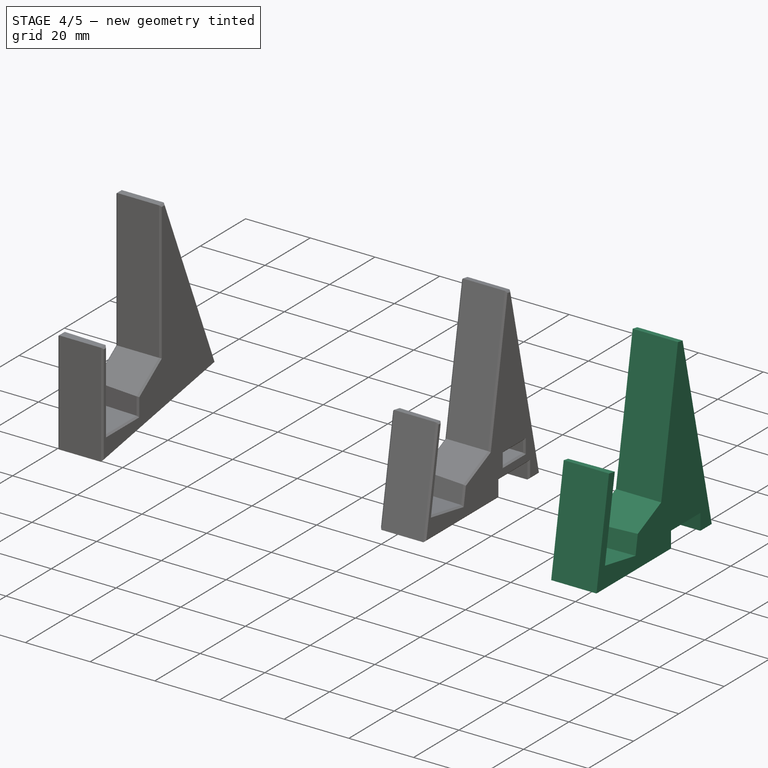
[diagram: stage 4 of 5 — iso view after this stage's code; geometry added in this stage tinted green]
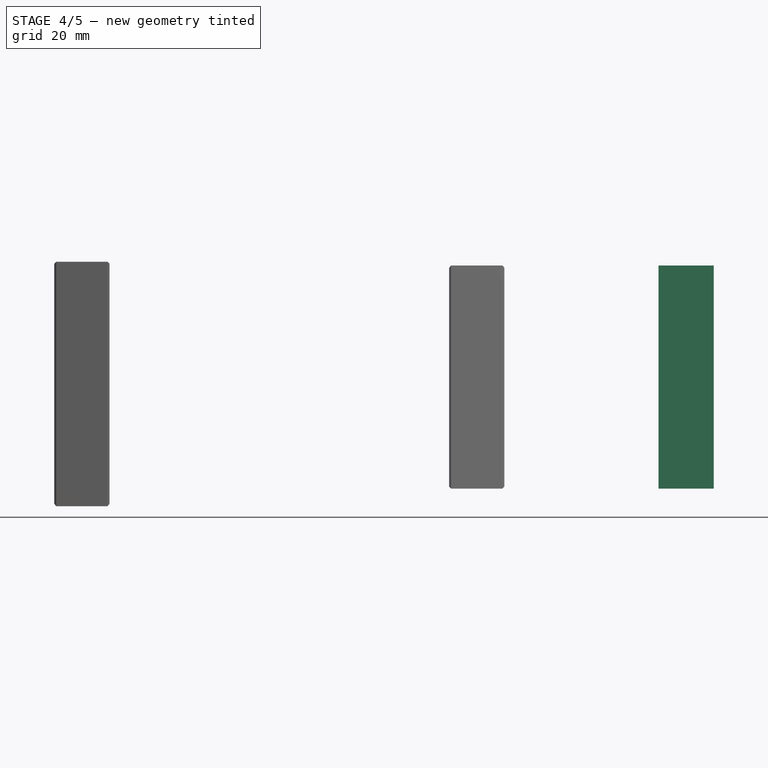
[diagram: stage 4 of 5 — front view after this stage's code; geometry added in this stage tinted green]
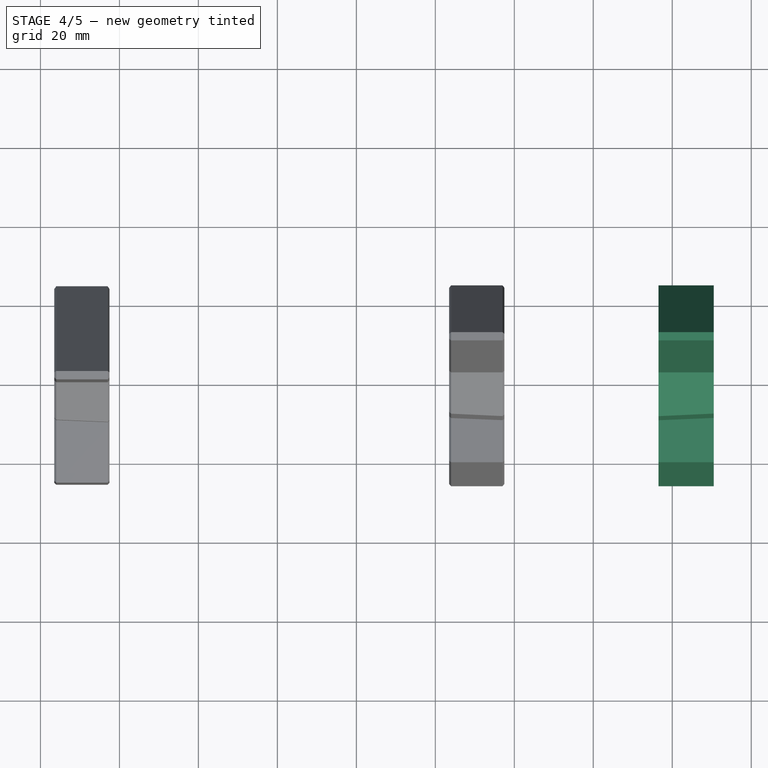
[diagram: stage 4 of 5 — top view after this stage's code; geometry added in this stage tinted green]
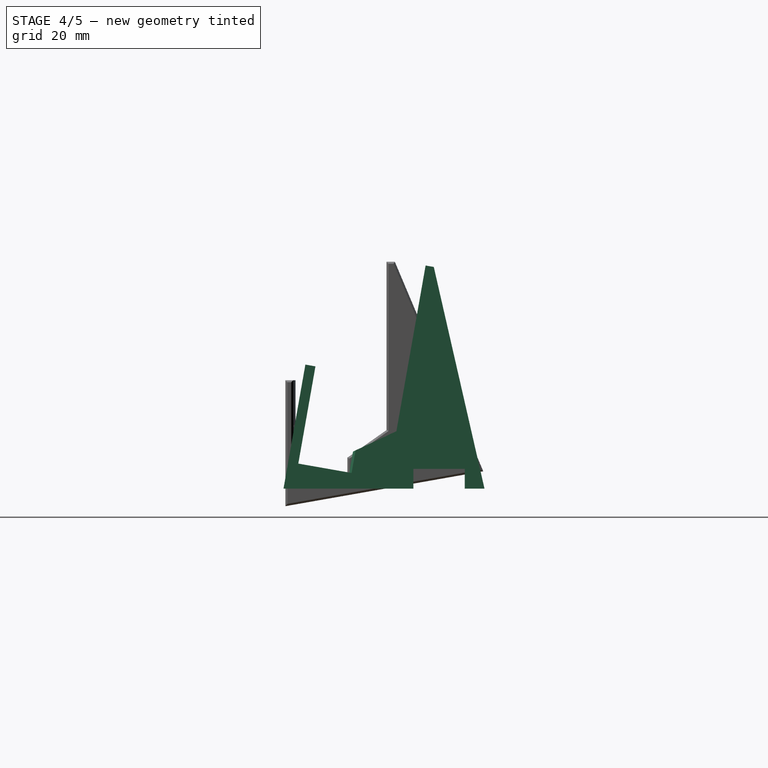
[diagram: stage 4 of 5 — right view after this stage's code; geometry added in this stage tinted green]
FEATURE [Part::Part2DObjectPython] ShapeString002  # Draft 2D object (typed FeaturePython)
  FontFile = <path> Bit Git Repro/16BitVirtualStudiosDesigns/Font/OpenSans-Regular.ttf
  Fuse = false
  Justification = 6
  JustificationReference = 0
  KeepLeftMargin = true
  MakeFace = true
  ObliqueAngle = 0
  Placement = pos=(59.6,-14.24,-5.02) rot=(1,0,0;3.31613rad)
  ScaleToSize = false
  Size = 10
  String = R
  Tracking = 0
FEATURE [Part::Part2DObjectPython] ShapeString003  # Draft 2D object (typed FeaturePython)
  FontFile = <path> Bit Git Repro/16BitVirtualStudiosDesigns/Font/OpenSans-Regular.ttf
  Fuse = false
  Justification = 6
  JustificationReference = 0
  KeepLeftMargin = true
  MakeFace = true
  ObliqueAngle = 0
  Placement = pos=(7.01,-14.23,-5.03) rot=(1,0,0;3.31613rad)
  ScaleToSize = false
  Size = 10
  String = L
  Tracking = 0
FEATURE [PartDesign::Pocket] Pocket004
  BaseFeature = -> Pad005
  Direction = (0,-0.173648,0.984808)
  Length = 0
  Length2 = 5
  Offset = 0.5
  Placement = pos=(-27,0,0) rot=(0,0,1;0rad)
  Profile = -> ShapeString002
  ReferenceAxis = -> ShapeString002 [N_Axis]
  Suppressed = false
  Type = 3
  UpToFace = -> Pad005 [Face101]
FEATURE [PartDesign::FeatureBase] Clone002
  BaseFeature = -> Pocket004
  Placement = pos=(73,0,0) rot=(-1,0,0;0.174533rad)
  Suppressed = false
FEATURE [Sketcher::SketchObject] Sketch012
  ArcFitTolerance = 0
  AttachmentSupport = -> [Clone002]
  ExternalGeometry = -> [Clone002]
  ExternalTypes = [0]
  FullyConstrained = true
  MakeInternals = false
  MapMode = 5
  Placement = pos=(170.5,-4.03659e-06,-2.28927e-05) rot=(0.540716,0.644401,0.540716;1.99673rad)
  sketch-geometry (4):
    g0: LineSegment StartX=6.99673 StartY=12.7242 StartZ=0 EndX=16.057 EndY=14.3217 EndZ=0
    g1: LineSegment StartX=16.057 StartY=14.3217 StartZ=0 EndX=16.6647 EndY=10.8749 EndZ=0
    g2: LineSegment StartX=16.6647 StartY=10.8749 StartZ=0 EndX=7.6045 EndY=9.27733 EndZ=0
    g3: LineSegment StartX=7.6045 StartY=9.27733 StartZ=0 EndX=6.99673 EndY=12.7242 EndZ=0
  constraints (8):
    c: Coincident(g0,g-3)
    c: Coincident(g0,g-4)
    c: Coincident(g1,g0)
    c: Coincident(g1,g-4)
    c: Coincident(g2,g1)
    c: Coincident(g2,g-3)
    c: Coincident(g3,g2)
    c: Coincident(g3,g0)
FEATURE [PartDesign::Pad] Pad011
  BaseFeature = -> Clone002
  Direction = (1,-4.1401e-08,-2.34796e-07)
  Length = 2
  Length2 = 10
  Placement = pos=(73,0,0) rot=(-1,0,0;0.174533rad)
  Profile = -> Sketch012
  ReferenceAxis = -> Sketch012 [N_Axis]
  Reversed = true
  Suppressed = false
  Type = 0
FEATURE [Sketcher::SketchObject] Sketch013
  ArcFitTolerance = 0
  AttachmentSupport = -> [Pad011]
  ExternalGeometry = -> [Pad011]
  ExternalTypes = [0]
  FullyConstrained = true
  MakeInternals = false
  MapMode = 5
  Placement = pos=(73,-2.24e-14,4.56588) rot=(1,0,0;3.14159rad)
  sketch-geometry (1):
    g0: Circle CenterX=90.5 CenterY=-13.7 CenterZ=0 NormalX=0 NormalY=0 NormalZ=1 AngleXU=0 Radius=2.6
  constraints (2):
    c: Diameter(g0) = 5.2
    c: Symmetric(g-3,g-4,g0)
FEATURE [PartDesign::Pocket] Pocket007
  BaseFeature = -> Pad011
  Direction = (2.34796e-07,-4.9e-15,1)
  Length = 11
  Length2 = 5
  Placement = pos=(73,0,0) rot=(-1,0,0;0.174533rad)
  Profile = -> Sketch013
  ReferenceAxis = -> Sketch013 [N_Axis]
  Suppressed = false
  Type = 0
FEATURE [Sketcher::SketchObject] Sketch014
  ArcFitTolerance = 0
  AttachmentSupport = -> [Pocket007]
  ExternalGeometry = -> [Pocket007]
  ExternalTypes = [0]
  FullyConstrained = true
  MakeInternals = false
  MapMode = 5
  Placement = pos=(73,-2.24e-14,4.56588) rot=(1,0,0;3.14159rad)
  sketch-geometry (1):
    g0: Circle CenterX=90.5 CenterY=-13.7 CenterZ=0 NormalX=0 NormalY=0 NormalZ=1 AngleXU=0 Radius=2.6
  constraints (2):
    c: Diameter(g0) = 5.2
    c: Coincident(g-3,g0)
FEATURE [PartDesign::Pocket] Pocket008
  BaseFeature = -> Pocket007
  Direction = (2.34796e-07,-4.9e-15,1)
  Length = 4
  Length2 = 5
  Placement = pos=(73,0,0) rot=(-1,0,0;0.174533rad)
  Profile = -> Sketch014
  ReferenceAxis = -> Sketch014 [N_Axis]
  Refine = true
  Suppressed = false
  Type = 0
FEATURE [PartDesign::Pocket] Pocket013
  BaseFeature = -> Pocket012
  Direction = (0,-0.173648,0.984808)
  Length = 1
  Length2 = 5
  Placement = pos=(1,0,0) rot=(0,0,1;0rad)
  Profile = -> Pocket012 [Face92]
  Suppressed = false
  Type = 0
FEATURE [PartDesign::Pocket] Pocket014
  BaseFeature = -> Pocket008
  Direction = (-1e-16,0,1)
  Length = 0
  Length2 = 5
  Offset = 0.5
  Placement = pos=(73,0,0) rot=(-1,0,0;0.174533rad)
  Profile = -> Sketch021
  ReferenceAxis = -> Sketch021 [N_Axis]
  Suppressed = false
  Type = 3
  UpToFace = -> Pocket008 [Face2]
FEATURE [PartDesign::Body] Body003  label="Kit Right"
  AllowCompound = false
  BaseFeature = -> Pocket004
  Group = -> [Clone002,Sketch012,Pad011,Sketch013,Pocket007,Sketch014,Pocket008,Sketch021,Pocket014,Pocket015,Chamfer003,Chamfer004]
  Origin = -> Origin004
  Tip = -> Chamfer004
FEATURE [PartDesign::Chamfer] Chamfer
  Angle = 45
  Base = -> Pocket013 [Face5,Face4]
  BaseFeature = -> Pocket013
  ChamferType = 0
  FlipDirection = false
  Placement = pos=(1,0,0) rot=(0,0,1;0rad)
  Size = 0.5
  Size2 = 1
  SupportTransform = false
  Suppressed = false
  UseAllEdges = false
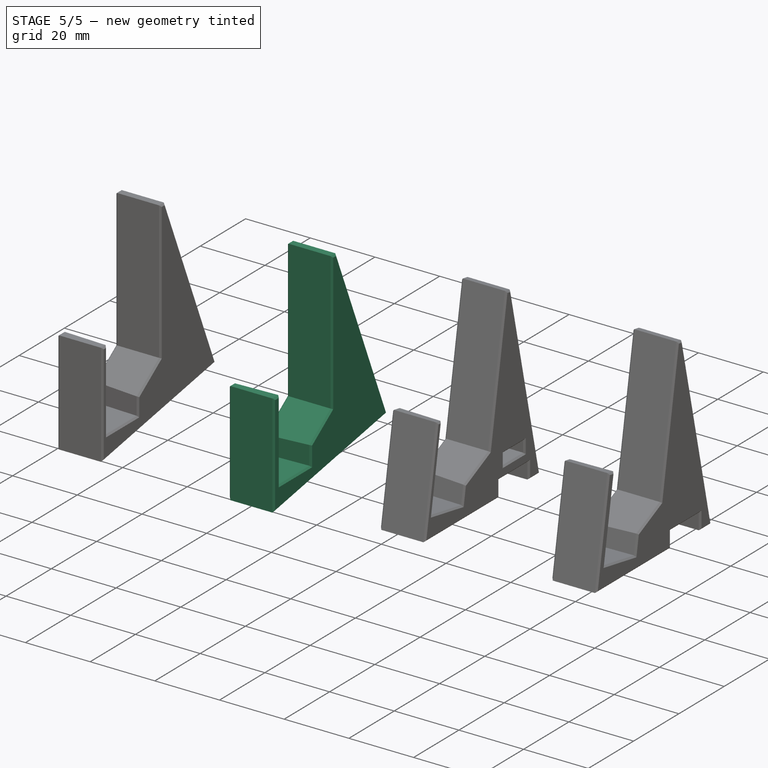
[diagram: stage 5 of 5 — iso view after this stage's code; geometry added in this stage tinted green]
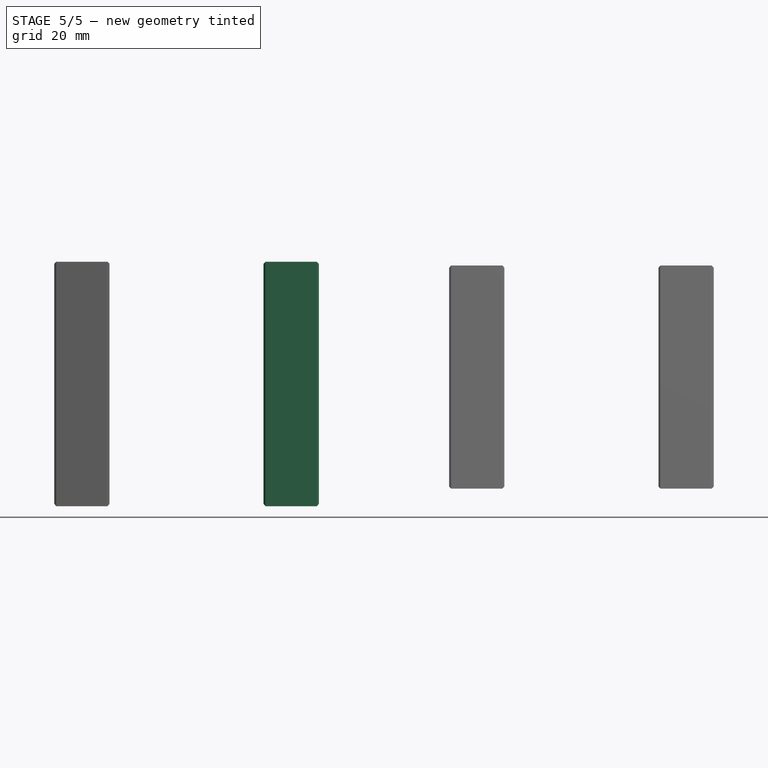
[diagram: stage 5 of 5 — front view after this stage's code; geometry added in this stage tinted green]
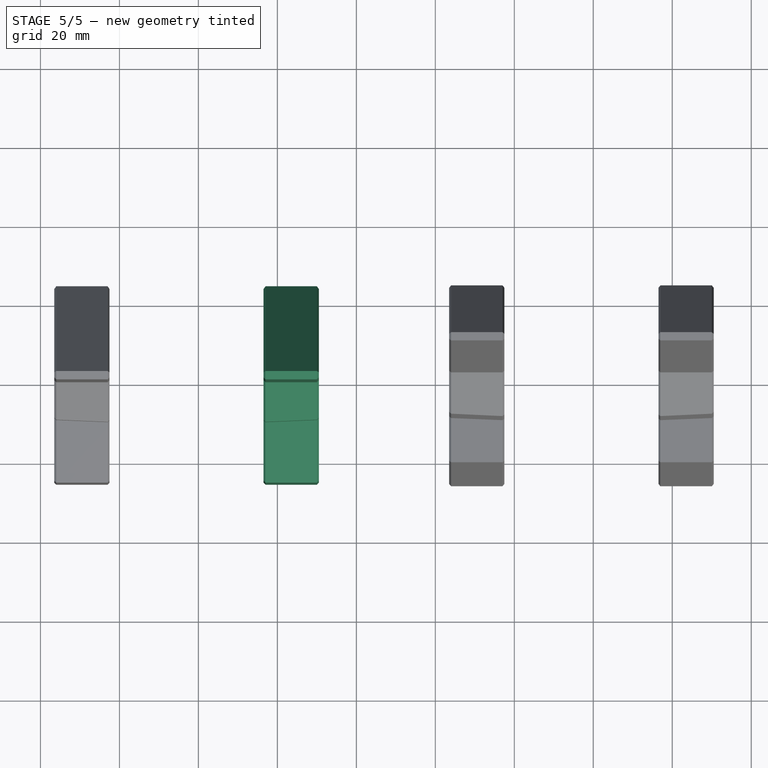
[diagram: stage 5 of 5 — top view after this stage's code; geometry added in this stage tinted green]
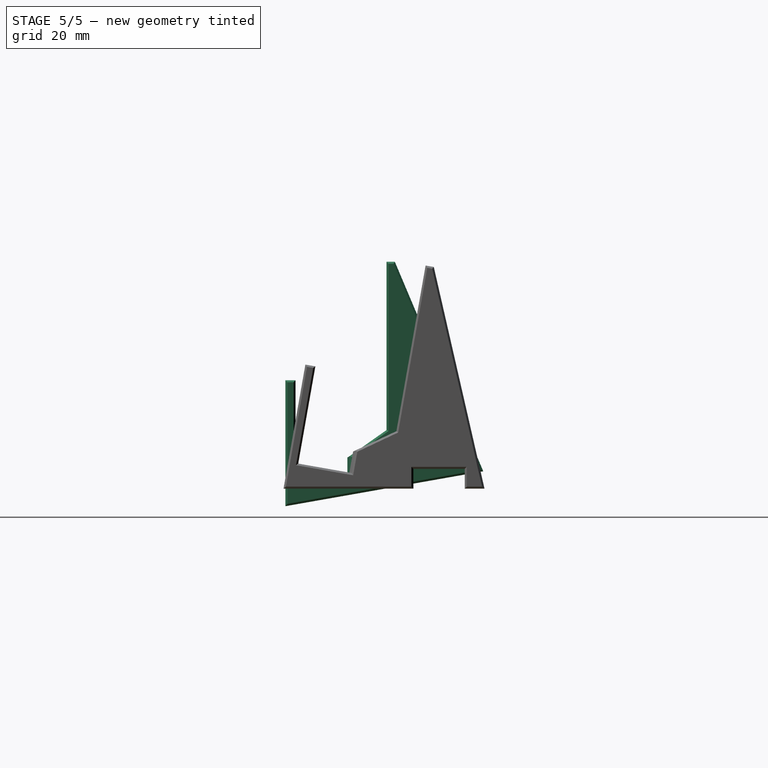
[diagram: stage 5 of 5 — right view after this stage's code; geometry added in this stage tinted green]
FEATURE [Sketcher::SketchObject] Sketch007
  ArcFitTolerance = 0
  AttachmentSupport = -> [Pocket004]
  ExternalGeometry = -> [Pocket004]
  ExternalTypes = [0]
  FullyConstrained = true
  MakeInternals = false
  MapMode = 5
  Placement = pos=(70.5,0,-2.32458e-05) rot=(0.57735,0.57735,0.57735;2.0944rad)
  sketch-geometry (8):
    g0: LineSegment StartX=6.99673 StartY=12.7242 StartZ=0 EndX=16.057 EndY=14.3217 EndZ=0
    g1: LineSegment StartX=16.057 StartY=14.3217 StartZ=0 EndX=16.6647 EndY=10.8749 EndZ=0
    g2: LineSegment StartX=16.6647 StartY=10.8749 StartZ=0 EndX=7.6045 EndY=9.27733 EndZ=0
    g3: LineSegment StartX=7.6045 StartY=9.27733 StartZ=0 EndX=6.99673 EndY=12.7242 EndZ=0
    g4: LineSegment StartX=6.29772 StartY=5.74677 StartZ=0 EndX=19.1002 EndY=8.0042 EndZ=0
    g5: LineSegment StartX=19.1002 StartY=8.0042 StartZ=0 EndX=19.9685 EndY=3.08016 EndZ=0
    g6: LineSegment StartX=7.16596 StartY=0.822735 StartZ=0 EndX=19.9685 EndY=3.08016 EndZ=0
    g7: LineSegment StartX=6.29772 StartY=5.74677 StartZ=0 EndX=7.16596 EndY=0.822735 EndZ=0
  constraints (16):
    c: Coincident(g0,g-6)
    c: Coincident(g0,g-5)
    c: Coincident(g1,g0)
    c: Coincident(g1,g-5)
    c: Coincident(g2,g1)
    c: Coincident(g2,g-6)
    c: Coincident(g3,g2)
    c: Coincident(g3,g0)
    c: Coincident(g4,g-3)
    c: Coincident(g4,g-4)
    c: Coincident(g5,g4)
    c: Coincident(g5,g-4)
    c: Coincident(g6,g-3)
    c: Coincident(g6,g5)
    c: Coincident(g7,g4)
    c: Coincident(g7,g6)
FEATURE [PartDesign::Pad] Pad008
  BaseFeature = -> Pocket004
  Direction = (1,0,-2.38419e-07)
  Length = 14
  Length2 = 10
  Placement = pos=(-27,0,0) rot=(0,0,1;0rad)
  Profile = -> Sketch007
  ReferenceAxis = -> Sketch007 [N_Axis]
  Refine = true
  Reversed = true
  Suppressed = false
  Type = 0
FEATURE [Sketcher::SketchObject] Sketch018  label="GB Icon001"
  ArcFitTolerance = 0
  ExternalTypes = [0]
  FullyConstrained = false
  MakeInternals = false
  Placement = pos=(67.45,12.12,-0.32) rot=(1,0,0;0.174533rad)
  sketch-geometry (16):
    g0: BSplineCurve PolesCount=2 KnotsCount=2 Degree=1 IsPeriodic=0
    g1: BSplineCurve PolesCount=4 KnotsCount=2 Degree=3 IsPeriodic=0
    g2: BSplineCurve PolesCount=4 KnotsCount=2 Degree=3 IsPeriodic=0
    g3: BSplineCurve PolesCount=4 KnotsCount=2 Degree=3 IsPeriodic=0
    g4: BSplineCurve PolesCount=2 KnotsCount=2 Degree=1 IsPeriodic=0
    g5: BSplineCurve PolesCount=4 KnotsCount=2 Degree=3 IsPeriodic=0
    g6: BSplineCurve PolesCount=2 KnotsCount=2 Degree=1 IsPeriodic=0
    g7: BSplineCurve PolesCount=4 KnotsCount=2 Degree=3 IsPeriodic=0
    g8: BSplineCurve PolesCount=2 KnotsCount=2 Degree=1 IsPeriodic=0
    g9: BSplineCurve PolesCount=4 KnotsCount=2 Degree=3 IsPeriodic=0
    g10: BSplineCurve PolesCount=4 KnotsCount=2 Degree=3 IsPeriodic=0
    g11: BSplineCurve PolesCount=4 KnotsCount=2 Degree=3 IsPeriodic=0
    g12: BSplineCurve PolesCount=2 KnotsCount=2 Degree=1 IsPeriodic=0
    g13: BSplineCurve PolesCount=4 KnotsCount=2 Degree=3 IsPeriodic=0
    g14: BSplineCurve PolesCount=2 KnotsCount=2 Degree=1 IsPeriodic=0
    g15: BSplineCurve PolesCount=4 KnotsCount=2 Degree=3 IsPeriodic=0
  constraints (16):
    c: Coincident(g0,g1)
    c: Coincident(g1,g2)
    c: Coincident(g2,g3)
    c: Coincident(g3,g4)
    c: Coincident(g4,g5)
    c: Coincident(g5,g6)
    c: Coincident(g6,g7)
    c: Coincident(g7,g0)
    c: Coincident(g8,g9)
    c: Coincident(g9,g10)
    c: Coincident(g10,g11)
    c: Coincident(g11,g12)
    c: Coincident(g12,g13)
    c: Coincident(g13,g14)
    c: Coincident(g14,g15)
    c: Coincident(g15,g8)
FEATURE [Sketcher::SketchObject] Sketch019  label="GB Icon002"
  ArcFitTolerance = 0
  ExternalTypes = [0]
  FullyConstrained = false
  MakeInternals = false
  Placement = pos=(14.45,12.12,-0.32) rot=(1,0,0;0.174533rad)
  sketch-geometry (16):
    g0: BSplineCurve PolesCount=2 KnotsCount=2 Degree=1 IsPeriodic=0
    g1: BSplineCurve PolesCount=4 KnotsCount=2 Degree=3 IsPeriodic=0
    g2: BSplineCurve PolesCount=4 KnotsCount=2 Degree=3 IsPeriodic=0
    g3: BSplineCurve PolesCount=4 KnotsCount=2 Degree=3 IsPeriodic=0
    g4: BSplineCurve PolesCount=2 KnotsCount=2 Degree=1 IsPeriodic=0
    g5: BSplineCurve PolesCount=4 KnotsCount=2 Degree=3 IsPeriodic=0
    g6: BSplineCurve PolesCount=2 KnotsCount=2 Degree=1 IsPeriodic=0
    g7: BSplineCurve PolesCount=4 KnotsCount=2 Degree=3 IsPeriodic=0
    g8: BSplineCurve PolesCount=2 KnotsCount=2 Degree=1 IsPeriodic=0
    g9: BSplineCurve PolesCount=4 KnotsCount=2 Degree=3 IsPeriodic=0
    g10: BSplineCurve PolesCount=4 KnotsCount=2 Degree=3 IsPeriodic=0
    g11: BSplineCurve PolesCount=4 KnotsCount=2 Degree=3 IsPeriodic=0
    g12: BSplineCurve PolesCount=2 KnotsCount=2 Degree=1 IsPeriodic=0
    g13: BSplineCurve PolesCount=4 KnotsCount=2 Degree=3 IsPeriodic=0
    g14: BSplineCurve PolesCount=2 KnotsCount=2 Degree=1 IsPeriodic=0
    g15: BSplineCurve PolesCount=4 KnotsCount=2 Degree=3 IsPeriodic=0
  constraints (16):
    c: Coincident(g0,g1)
    c: Coincident(g1,g2)
    c: Coincident(g2,g3)
    c: Coincident(g3,g4)
    c: Coincident(g4,g5)
    c: Coincident(g5,g6)
    c: Coincident(g6,g7)
    c: Coincident(g7,g0)
    c: Coincident(g8,g9)
    c: Coincident(g9,g10)
    c: Coincident(g10,g11)
    c: Coincident(g11,g12)
    c: Coincident(g12,g13)
    c: Coincident(g13,g14)
    c: Coincident(g14,g15)
    c: Coincident(g15,g8)
FEATURE [Sketcher::SketchObject] Sketch020  label="GB Icon003"
  ArcFitTolerance = 0
  ExternalTypes = [0]
  FullyConstrained = false
  MakeInternals = false
  Placement = pos=(106.55,-5.77,-2.43) rot=(0,1,0;3.14159rad)
  sketch-geometry (16):
    g0: BSplineCurve PolesCount=2 KnotsCount=2 Degree=1 IsPeriodic=0
    g1: BSplineCurve PolesCount=4 KnotsCount=2 Degree=3 IsPeriodic=0
    g2: BSplineCurve PolesCount=4 KnotsCount=2 Degree=3 IsPeriodic=0
    g3: BSplineCurve PolesCount=4 KnotsCount=2 Degree=3 IsPeriodic=0
    g4: BSplineCurve PolesCount=2 KnotsCount=2 Degree=1 IsPeriodic=0
    g5: BSplineCurve PolesCount=4 KnotsCount=2 Degree=3 IsPeriodic=0
    g6: BSplineCurve PolesCount=2 KnotsCount=2 Degree=1 IsPeriodic=0
    g7: BSplineCurve PolesCount=4 KnotsCount=2 Degree=3 IsPeriodic=0
    g8: BSplineCurve PolesCount=2 KnotsCount=2 Degree=1 IsPeriodic=0
    g9: BSplineCurve PolesCount=4 KnotsCount=2 Degree=3 IsPeriodic=0
    g10: BSplineCurve PolesCount=4 KnotsCount=2 Degree=3 IsPeriodic=0
    g11: BSplineCurve PolesCount=4 KnotsCount=2 Degree=3 IsPeriodic=0
    g12: BSplineCurve PolesCount=2 KnotsCount=2 Degree=1 IsPeriodic=0
    g13: BSplineCurve PolesCount=4 KnotsCount=2 Degree=3 IsPeriodic=0
    g14: BSplineCurve PolesCount=2 KnotsCount=2 Degree=1 IsPeriodic=0
    g15: BSplineCurve PolesCount=4 KnotsCount=2 Degree=3 IsPeriodic=0
  constraints (16):
    c: Coincident(g0,g1)
    c: Coincident(g1,g2)
    c: Coincident(g2,g3)
    c: Coincident(g3,g4)
    c: Coincident(g4,g5)
    c: Coincident(g5,g6)
    c: Coincident(g6,g7)
    c: Coincident(g7,g0)
    c: Coincident(g8,g9)
    c: Coincident(g9,g10)
    c: Coincident(g10,g11)
    c: Coincident(g11,g12)
    c: Coincident(g12,g13)
    c: Coincident(g13,g14)
    c: Coincident(g14,g15)
    c: Coincident(g15,g8)
FEATURE [Sketcher::SketchObject] Sketch021  label="GB Icon004"
  ArcFitTolerance = 0
  ExternalTypes = [0]
  FullyConstrained = false
  MakeInternals = false
  Placement = pos=(159.55,-5.77,-2.43) rot=(0,1,0;3.14159rad)
  sketch-geometry (16):
    g0: BSplineCurve PolesCount=2 KnotsCount=2 Degree=1 IsPeriodic=0
    g1: BSplineCurve PolesCount=4 KnotsCount=2 Degree=3 IsPeriodic=0
    g2: BSplineCurve PolesCount=4 KnotsCount=2 Degree=3 IsPeriodic=0
    g3: BSplineCurve PolesCount=4 KnotsCount=2 Degree=3 IsPeriodic=0
    g4: BSplineCurve PolesCount=2 KnotsCount=2 Degree=1 IsPeriodic=0
    g5: BSplineCurve PolesCount=4 KnotsCount=2 Degree=3 IsPeriodic=0
    g6: BSplineCurve PolesCount=2 KnotsCount=2 Degree=1 IsPeriodic=0
    g7: BSplineCurve PolesCount=4 KnotsCount=2 Degree=3 IsPeriodic=0
    g8: BSplineCurve PolesCount=2 KnotsCount=2 Degree=1 IsPeriodic=0
    g9: BSplineCurve PolesCount=4 KnotsCount=2 Degree=3 IsPeriodic=0
    g10: BSplineCurve PolesCount=4 KnotsCount=2 Degree=3 IsPeriodic=0
    g11: BSplineCurve PolesCount=4 KnotsCount=2 Degree=3 IsPeriodic=0
    g12: BSplineCurve PolesCount=2 KnotsCount=2 Degree=1 IsPeriodic=0
    g13: BSplineCurve PolesCount=4 KnotsCount=2 Degree=3 IsPeriodic=0
    g14: BSplineCurve PolesCount=2 KnotsCount=2 Degree=1 IsPeriodic=0
    g15: BSplineCurve PolesCount=4 KnotsCount=2 Degree=3 IsPeriodic=0
  constraints (16):
    c: Coincident(g0,g1)
    c: Coincident(g1,g2)
    c: Coincident(g2,g3)
    c: Coincident(g3,g4)
    c: Coincident(g4,g5)
    c: Coincident(g5,g6)
    c: Coincident(g6,g7)
    c: Coincident(g7,g0)
    c: Coincident(g8,g9)
    c: Coincident(g9,g10)
    c: Coincident(g10,g11)
    c: Coincident(g11,g12)
    c: Coincident(g12,g13)
    c: Coincident(g13,g14)
    c: Coincident(g14,g15)
    c: Coincident(g15,g8)
FEATURE [PartDesign::Pocket] Pocket010
  BaseFeature = -> Pad008
  Direction = (0,0.173648,-0.984808)
  Length = 0
  Length2 = 5
  Offset = 0.5
  Placement = pos=(-27,0,0) rot=(0,0,1;0rad)
  Profile = -> Sketch018
  ReferenceAxis = -> Sketch018 [N_Axis]
  Reversed = true
  Suppressed = false
  Type = 3
  UpToFace = -> Pad008 [Face91]
FEATURE [PartDesign::Pocket] Pocket011
  BaseFeature = -> Pocket010
  Direction = (2.34796e-07,-0.173648,0.984808)
  Length = 1
  Length2 = 5
  Placement = pos=(-27,0,0) rot=(0,0,1;0rad)
  Profile = -> Pocket010 [Face107]
  Suppressed = false
  Type = 0
FEATURE [PartDesign::Pocket] Pocket015
  BaseFeature = -> Pocket014
  Direction = (2.34796e-07,-4.9e-15,1)
  Length = 1
  Length2 = 5
  Placement = pos=(73,0,0) rot=(-1,0,0;0.174533rad)
  Profile = -> Pocket014 [Face119]
  Suppressed = false
  Type = 0
FEATURE [PartDesign::Chamfer] Chamfer002
  Angle = 45
  Base = -> Pocket011 [Edge34,Edge3,Edge9,Edge35,Edge36,Edge37,Edge38,Edge33,Edge39,Edge40,Edge42,Edge41,Edge10,Edge43,Edge44,Edge45,Edge46,Edge4]
  BaseFeature = -> Pocket011
  ChamferType = 0
  FlipDirection = false
  Placement = pos=(-27,0,0) rot=(0,0,1;0rad)
  Size = 0.5
  Size2 = 1
  SupportTransform = false
  Suppressed = false
  UseAllEdges = false
FEATURE [Sketcher::SketchObject] Sketch023
  ArcFitTolerance = 0
  AttachmentSupport = -> [Chamfer002]
  ExternalGeometry = -> [Chamfer002]
  ExternalTypes = [0]
  FullyConstrained = true
  MakeInternals = false
  MapMode = 5
  Placement = pos=(-27,0.4,-4.7e-15) rot=(1,0,0;1.5708rad)
  sketch-geometry (6):
    g0: LineSegment StartX=84 StartY=57 StartZ=0 EndX=83.5 EndY=57 EndZ=0
    g1: LineSegment StartX=83.5 StartY=57 StartZ=0 EndX=83.5 EndY=56.5 EndZ=0
    g2: LineSegment StartX=83.5 StartY=56.5 StartZ=0 EndX=84 EndY=57 EndZ=0
    g3: LineSegment StartX=97 StartY=57 StartZ=0 EndX=97.5 EndY=57 EndZ=0
    g4: LineSegment StartX=97.5 StartY=57 StartZ=0 EndX=97.5 EndY=56.5 EndZ=0
    g5: LineSegment StartX=97.5 StartY=56.5 StartZ=0 EndX=97 EndY=57 EndZ=0
  constraints (14):
    c: Coincident(g0,g-3)
    c: Coincident(g0,g-5)
    c: Coincident(g1,g0)
    c: Coincident(g2,g1)
    c: Coincident(g2,g0)
    c: Coincident(g3,g-3)
    c: Coincident(g3,g-4)
    c: Coincident(g4,g3)
    c: Coincident(g5,g4)
    c: Coincident(g5,g3)
    c: Equal(g3,g4)
    c: Equal(g0,g1)
    c: PointOnObject(g1,g-5)
    c: PointOnObject(g4,g-4)
FEATURE [PartDesign::Pocket] Pocket019
  BaseFeature = -> Chamfer002
  Direction = (0,1,-1.18e-14)
  Length = 5
  Length2 = 5
  Placement = pos=(-27,0,0) rot=(0,0,1;0rad)
  Profile = -> Sketch023
  ReferenceAxis = -> Sketch023 [N_Axis]
  Suppressed = false
  Type = 0
FEATURE [PartDesign::Body] Body001  label="Stand Right"
  AllowCompound = false
  BaseFeature = -> Part__Mirroring
  Group = -> [Clone,ShapeString,Pocket002,Sketch004,Pad005,ShapeString002,Pocket004,Sketch007,Pad008,Sketch018,Pocket010,Pocket011,Chamfer002,Sketch023,Pocket019]
  Origin = -> Origin002
  Placement = pos=(0,0,0) rot=(-1,0,0;0.174533rad)
  Tip = -> Pocket019
FEATURE [PartDesign::Chamfer] Chamfer003
  Angle = 45
  Base = -> Pocket015 [Face5]
  BaseFeature = -> Pocket015
  ChamferType = 0
  FlipDirection = false
  Placement = pos=(73,0,0) rot=(-1,0,0;0.174533rad)
  Size = 0.5
  Size2 = 1
  SupportTransform = false
  Suppressed = false
  UseAllEdges = false
FEATURE [PartDesign::Chamfer] Chamfer004
  Angle = 45
  Base = -> Chamfer003 [Face4]
  BaseFeature = -> Chamfer003
  ChamferType = 0
  FlipDirection = false
  Placement = pos=(73,0,0) rot=(-1,0,0;0.174533rad)
  Size = 0.5
  Size2 = 1
  SupportTransform = false
  Suppressed = false
  UseAllEdges = false
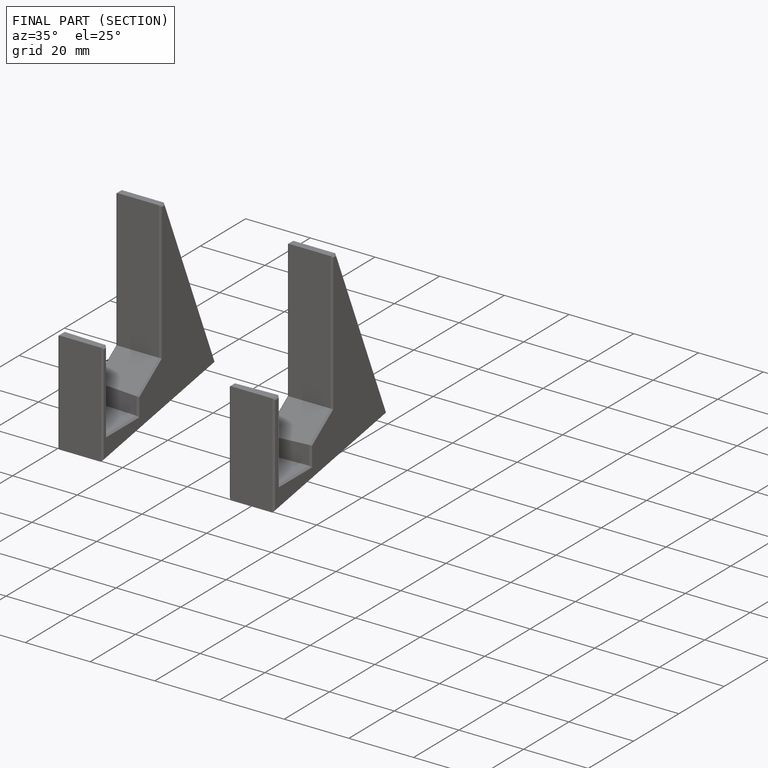
[diagram: finished part — half-section view (interior)]
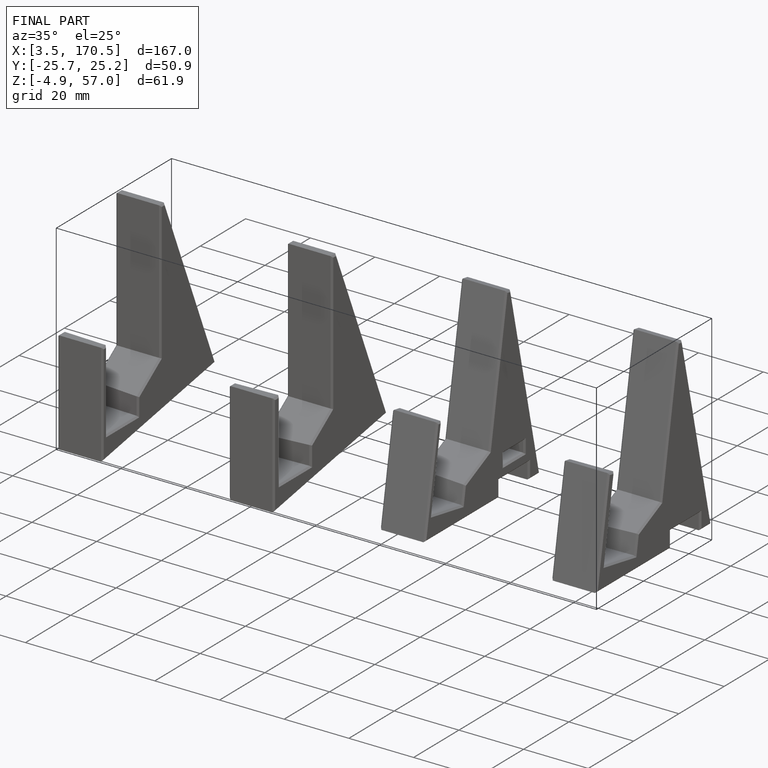
[diagram: finished part — iso view with bounding-box wireframe]
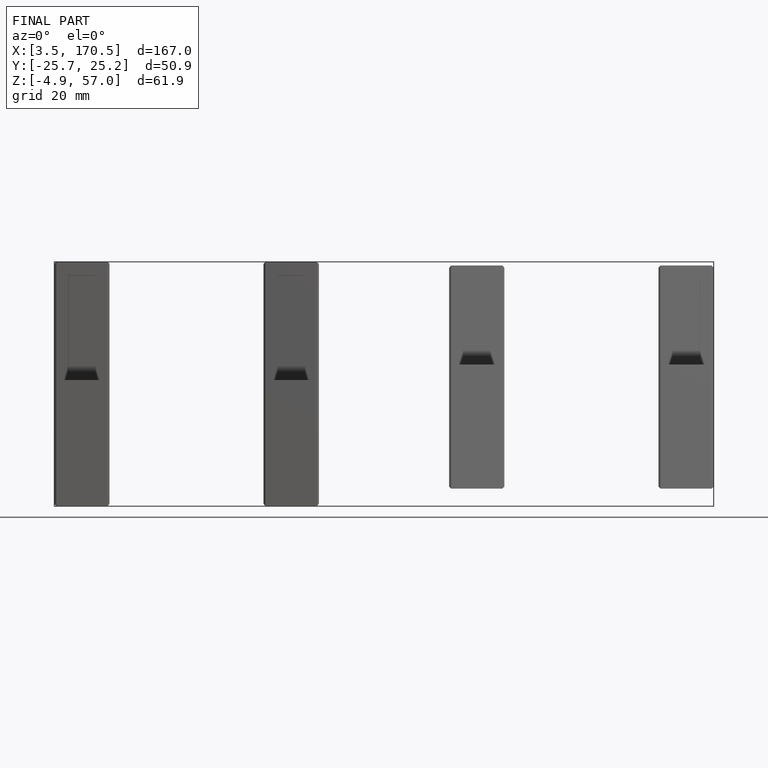
[diagram: finished part — front view with bounding-box wireframe]
